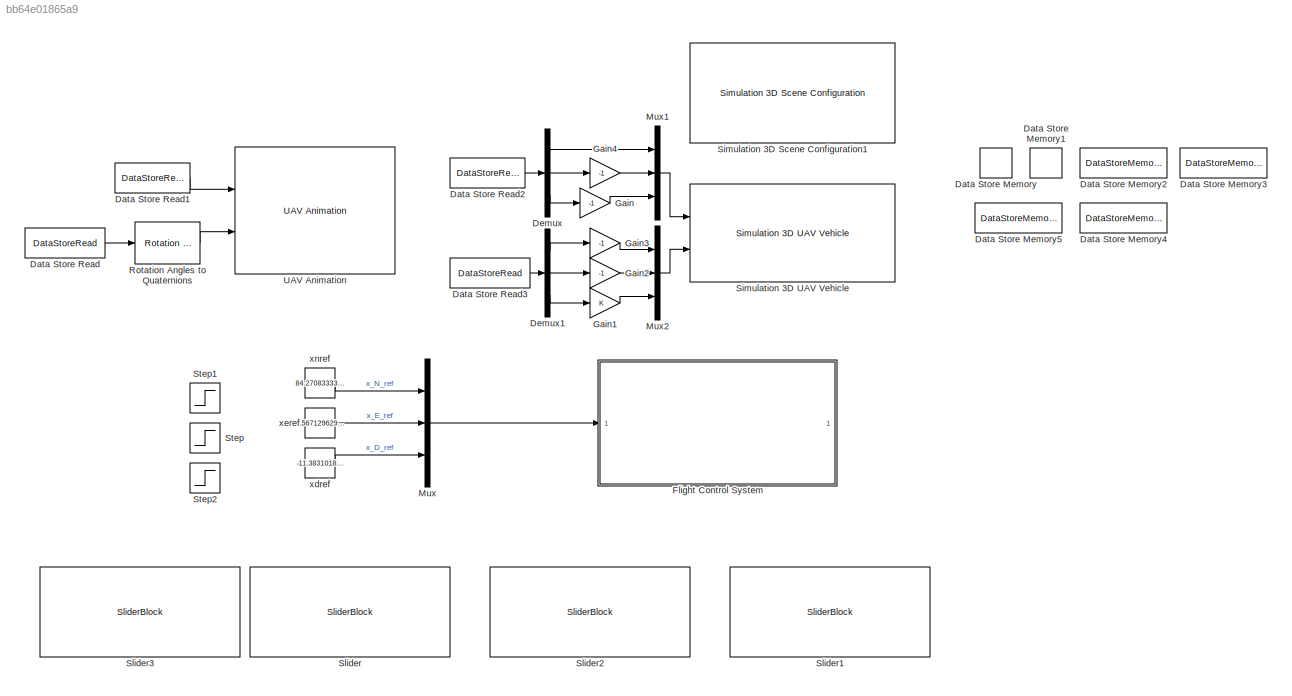
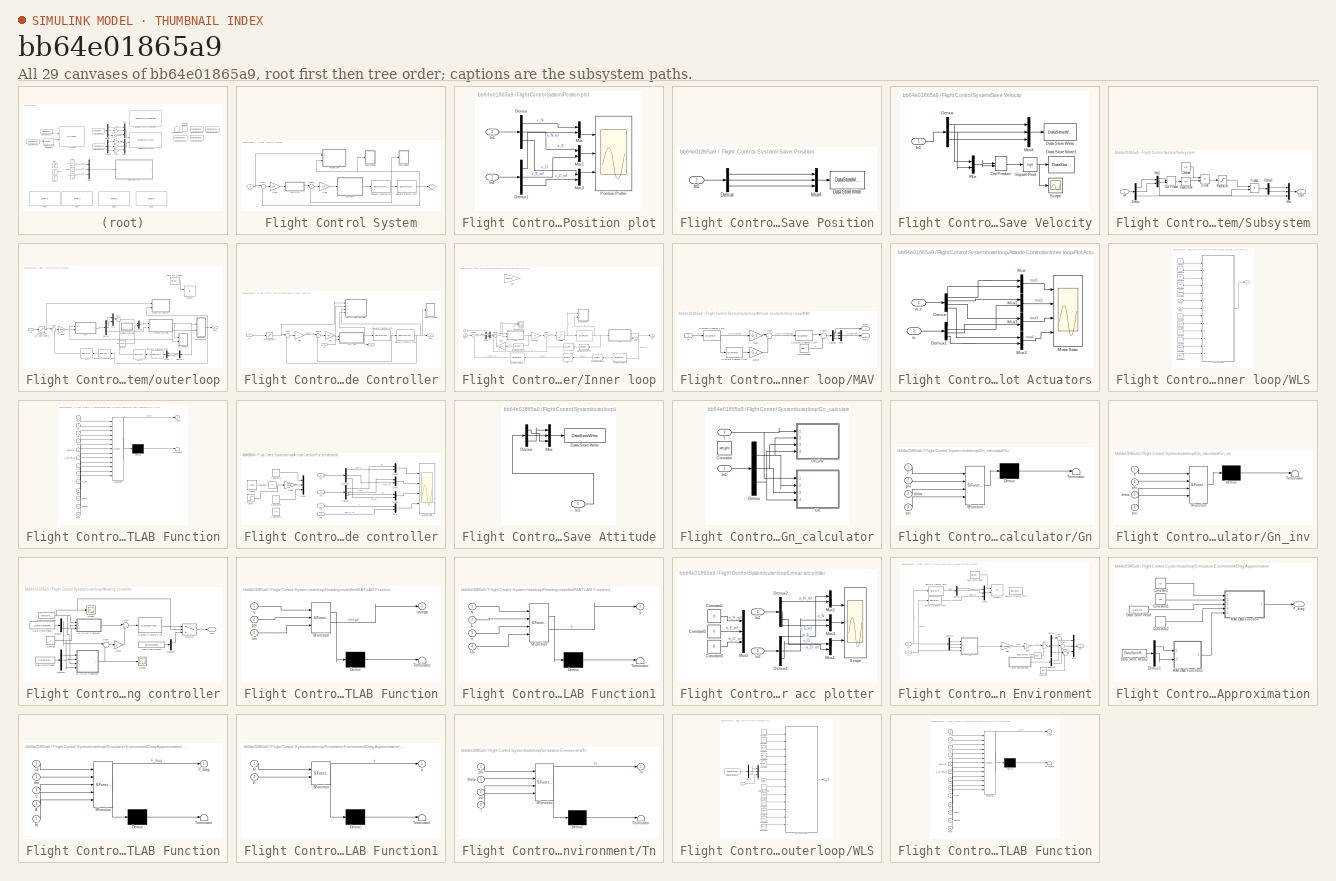
[diagram: thumbnail index - all 29 canvases of the model, root first then tree order]
MODEL slx_bb64e01865a9
KIND model
CONFIG AbsTol = auto
CONFIG EnableMultiTasking = off
CONFIG FixedStep = auto
CONFIG MaxStep = auto
CONFIG MinStep = auto
CONFIG RelTol = 1e-3
CONFIG SampleTimeConstraint = Unconstrained
CONFIG SolverName = VariableStepAuto
CONFIG StartTime = 0.0
CONFIG StopTime = 300
BLOCK [DataStoreMemory] Data Store Memory
  DataStoreName = Gn
  Dimensions = [3,3]
  InitialValue = [0,-9.81*mass,0;9.81*mass,0,0;0,0,1]
  OutDataTypeStr = double
  ReadBeforeWriteMsg = warning
  ShareAcrossModelInstances = on
  ShowAdditionalParam = off
  SignalType = real
  WriteAfterReadMsg = warning
  WriteAfterWriteMsg = warning
BLOCK [DataStoreMemory] Data Store Memory1
  DataStoreName = Gn_inv
  Dimensions = [3,3]
  InitialValue = [0,-1/weight,0;1/weight,0,0;0,0,1]
  OutDataTypeStr = double
  ReadBeforeWriteMsg = warning
  ShareAcrossModelInstances = on
  ShowAdditionalParam = off
  SignalType = real
  WriteAfterReadMsg = warning
  WriteAfterWriteMsg = warning
BLOCK [DataStoreMemory] Data Store Memory2
  DataStoreName = rot_psi_theta_phi
  InitialValue = [0,0,0]
  OutDataTypeStr = double
  ReadBeforeWriteMsg = warning
  ShowAdditionalParam = off
  WriteAfterReadMsg = warning
  WriteAfterWriteMsg = warning
BLOCK [DataStoreMemory] Data Store Memory3
  DataStoreName = pos_x_y_z
  InitialValue = [0,0,0]
  OutDataTypeStr = double
  ReadBeforeWriteMsg = warning
  ShowAdditionalParam = off
  WriteAfterReadMsg = warning
  WriteAfterWriteMsg = warning
BLOCK [DataStoreMemory] Data Store Memory4
  DataStoreName = vel_N_E_D
  InitialValue = [0,0,0]
  OutDataTypeStr = double
  ReadBeforeWriteMsg = warning
  ShowAdditionalParam = off
  WriteAfterReadMsg = warning
  WriteAfterWriteMsg = warning
BLOCK [DataStoreMemory] Data Store Memory5
  DataStoreName = airspeed
  InitialValue = [0]
  OutDataTypeStr = double
  OutMin = [0]
  ReadBeforeWriteMsg = warning
  ShowAdditionalParam = off
  WriteAfterReadMsg = warning
  WriteAfterWriteMsg = warning
BLOCK [DataStoreRead] Data Store Read
  Commented = on
  DataStoreName = rot_psi_theta_phi
  IndexOptions = Index vector (dialog)
  Indices = 1
  OutputSizes = 1
  Ports = [0, 1]
BLOCK [DataStoreRead] Data Store Read1
  Commented = on
  DataStoreName = pos_x_y_z
  IndexOptions = Index vector (dialog)
  Indices = 1
  OutputSizes = 1
  Ports = [0, 1]
BLOCK [DataStoreRead] Data Store Read2
  DataStoreName = pos_x_y_z
  IndexOptions = Index vector (dialog)
  Indices = 1
  OutputSizes = 1
  Ports = [0, 1]
BLOCK [DataStoreRead] Data Store Read3
  DataStoreName = rot_psi_theta_phi
  IndexOptions = Index vector (dialog)
  Indices = 1
  OutputSizes = 1
  Ports = [0, 1]
BLOCK [Demux] Demux
  Outputs = 3
  Ports = [1, 3]
BLOCK [Demux] Demux1
  Outputs = 3
  Ports = [1, 3]
BLOCK [SubSystem] Flight Control System
  Ports = [1, 1]
  RequestExecContextInheritance = off
BLOCK [DiscreteTransferFcn] Flight Control System/Discrete Transfer Fcn
  Denominator = [1 -1]
  InputPortMap = u0
  NameLocation = top
  Numerator = [Ts 0]
  Ports = [1, 1]
BLOCK [DiscreteTransferFcn] Flight Control System/Discrete Transfer Fcn1
  Denominator = [1 -1]
  InputPortMap = u0
  NameLocation = top
  Numerator = [Ts 0]
  Ports = [1, 1]
BLOCK [Gain] Flight Control System/Gain
  Gain = 2.5
BLOCK [Gain] Flight Control System/Gain1
  Gain = 0.4
BLOCK [Inport] Flight Control System/In1
BLOCK [Outport] Flight Control System/Out1
BLOCK [SubSystem] Flight Control System/Position plot
  Ports = [2]
  RequestExecContextInheritance = off
BLOCK [Demux] Flight Control System/Position plot/Demux
  Outputs = 3
  Ports = [1, 3]
BLOCK [Demux] Flight Control System/Position plot/Demux1
  Outputs = 3
  Ports = [1, 3]
BLOCK [Inport] Flight Control System/Position plot/In1
  Port = 2
BLOCK [Inport] Flight Control System/Position plot/In4
BLOCK [Mux] Flight Control System/Position plot/Mux
  DisplayOption = bar
  Inputs = 2
  Ports = [2, 1]
BLOCK [Mux] Flight Control System/Position plot/Mux1
  DisplayOption = bar
  Inputs = 2
  Ports = [2, 1]
BLOCK [Mux] Flight Control System/Position plot/Mux3
  DisplayOption = bar
  Inputs = 2
  Ports = [2, 1]
BLOCK [Scope] Flight Control System/Position plot/Position Plotter
  Floating = off
  NumInputPorts = 3
  Ports = [3]
  ScopeSpecificationString = Simulink.scopes.TimeScopeBlockCfg('CurrentConfiguration', extmgr.ConfigurationSet(extmgr.Configuration('Core','General UI',true),extmgr.Configuration('Core','Source UI',true),extmgr.Configuration('Sources','WiredSimulink',true,'DataLoggingVariableName','ScopeData2'),extmgr.Configuration('Visuals','Time Domain',true,'SerializedDisplays',{struct('MinYLimReal','-20.28592','MaxYLimReal','95.88825','YL...<+2774ch>
BLOCK [SubSystem] Flight Control System/Save Position
  Ports = [1]
  RequestExecContextInheritance = off
BLOCK [DataStoreWrite] Flight Control System/Save Position/Data Store Write
  DataStoreName = pos_x_y_z
  IndexOptions = Index vector (dialog)
  Indices = 1
  OutputSizes = 1
  Ports = [1]
BLOCK [Demux] Flight Control System/Save Position/Demux
  Outputs = 3
  Ports = [1, 3]
BLOCK [Inport] Flight Control System/Save Position/In1
BLOCK [Mux] Flight Control System/Save Position/Mux4
  DisplayOption = bar
  Inputs = 3
  Ports = [3, 1]
BLOCK [SubSystem] Flight Control System/Save Velocity
  Ports = [1]
  RequestExecContextInheritance = off
BLOCK [DataStoreWrite] Flight Control System/Save Velocity/Data Store Write
  DataStoreName = vel_N_E_D
  IndexOptions = Index vector (dialog)
  Indices = 1
  OutputSizes = 1
  Ports = [1]
BLOCK [DataStoreWrite] Flight Control System/Save Velocity/Data Store Write1
  DataStoreName = airspeed
  IndexOptions = Index vector (dialog)
  Indices = 1
  OutputSizes = 1
  Ports = [1]
BLOCK [Demux] Flight Control System/Save Velocity/Demux
  Outputs = 3
  Ports = [1, 3]
BLOCK [DotProduct] Flight Control System/Save Velocity/Dot Product
  OutDataTypeStr = Inherit: Inherit via internal rule
BLOCK [Inport] Flight Control System/Save Velocity/In1
BLOCK [Mux] Flight Control System/Save Velocity/Mux
  DisplayOption = bar
  Inputs = 2
  Ports = [2, 1]
BLOCK [Mux] Flight Control System/Save Velocity/Mux4
  DisplayOption = bar
  Inputs = 3
  Ports = [3, 1]
BLOCK [Scope] Flight Control System/Save Velocity/Scope
  Floating = off
  NumInputPorts = 1
  Ports = [1]
  ScopeSpecificationString = Simulink.scopes.TimeScopeBlockCfg('CurrentConfiguration', extmgr.ConfigurationSet(extmgr.Configuration('Core','General UI',true),extmgr.Configuration('Core','Source UI',true),extmgr.Configuration('Sources','WiredSimulink',true,'DataLoggingVariableName','ScopeData1'),extmgr.Configuration('Visuals','Time Domain',true,'SerializedDisplays',{struct('MinYLimReal','-1.24993','MaxYLimReal','11.24942','YLa...<+1430ch>
BLOCK [Sqrt] Flight Control System/Save Velocity/Square Root
BLOCK [SubSystem] Flight Control System/Subsystem
  Ports = [1, 1]
  RequestExecContextInheritance = off
BLOCK [Constant] Flight Control System/Subsystem/Constant
  Value = v_lim
BLOCK [Demux] Flight Control System/Subsystem/Demux
  Outputs = 3
  Ports = [1, 3]
BLOCK [Demux] Flight Control System/Subsystem/Demux1
  Outputs = 2
  Ports = [1, 2]
BLOCK [Product] Flight Control System/Subsystem/Divide
  Inputs = */
  Ports = [2, 1]
BLOCK [DotProduct] Flight Control System/Subsystem/Dot Product
  OutDataTypeStr = Inherit: Inherit via internal rule
BLOCK [Inport] Flight Control System/Subsystem/In4
BLOCK [Mux] Flight Control System/Subsystem/Mux
  DisplayOption = bar
  Inputs = 3
  Ports = [3, 1]
BLOCK [Mux] Flight Control System/Subsystem/Mux1
  DisplayOption = bar
  Inputs = 2
  Ports = [2, 1]
BLOCK [Outport] Flight Control System/Subsystem/Out4
BLOCK [Product] Flight Control System/Subsystem/Product
  Ports = [2, 1]
BLOCK [Saturate] Flight Control System/Subsystem/Saturation
  LowerLimit = 0
  UpperLimit = 1
BLOCK [Sqrt] Flight Control System/Subsystem/Square Root
BLOCK [Sum] Flight Control System/Sum1
  Inputs = |+-
  Ports = [2, 1]
BLOCK [Sum] Flight Control System/Sum5
  Inputs = |+-
  Ports = [2, 1]
BLOCK [SubSystem] Flight Control System/outerloop
  Ports = [1, 1]
  RequestExecContextInheritance = off
BLOCK [Saturate] Flight Control System/outerloop/Acceleration set-point Limiter
  LowerLimit = [-3,-3,-3]
  UpperLimit = [3,3,3]
BLOCK [SubSystem] Flight Control System/outerloop/Attitude Controller
  Ports = [2, 2]
  RequestExecContextInheritance = off
BLOCK [Saturate] Flight Control System/outerloop/Attitude Controller/Attitude limits
  LowerLimit = [-25,-25,-180]*pi/180
  UpperLimit = [25,25,180]*pi/180
BLOCK [DiscreteTransferFcn] Flight Control System/outerloop/Attitude Controller/Discrete Transfer Fcn
  Denominator = [1 -1]
  InputPortMap = u0
  NameLocation = top
  Numerator = [Ts 0]
  Ports = [1, 1]
BLOCK [DiscreteTransferFcn] Flight Control System/outerloop/Attitude Controller/Discrete Transfer Fcn1
  Denominator = [1 -1]
  InputPortMap = u0
  NameLocation = top
  Numerator = [Ts 0]
  Ports = [1, 1]
BLOCK [Gain] Flight Control System/outerloop/Attitude Controller/Gain
  Gain = 10
BLOCK [Gain] Flight Control System/outerloop/Attitude Controller/Gain1
  Gain = 7
BLOCK [Inport] Flight Control System/outerloop/Attitude Controller/In1
BLOCK [Inport] Flight Control System/outerloop/Attitude Controller/In2
  Port = 2
BLOCK [SubSystem] Flight Control System/outerloop/Attitude Controller/Inner loop
  Ports = [2, 2]
  RequestExecContextInheritance = off
BLOCK [DiscreteTransferFcn] Flight Control System/outerloop/Attitude Controller/Inner loop/ 
  DenCoefDataTypeStr = int16
  Denominator = H_z_den
  InputPortMap = u0
  Numerator = H_z_num
  Ports = [1, 1]
BLOCK [DiscreteTransferFcn] Flight Control System/outerloop/Attitude Controller/Inner loop/  
  DenCoefDataTypeStr = int16
  Denominator = mot_den
  InputPortMap = u0
  Numerator = mot_num
  Ports = [1, 1]
BLOCK [Demux] Flight Control System/outerloop/Attitude Controller/Inner loop/Demux
  Outputs = 3
  Ports = [1, 3]
BLOCK [DiscreteTransferFcn] Flight Control System/outerloop/Attitude Controller/Inner loop/Discrete Transfer Fcn
  Denominator = [1 -1]
  InputPortMap = u0
  NameLocation = top
  Numerator = [Ts 0]
  Ports = [1, 1]
BLOCK [DiscreteTransferFcn] Flight Control System/outerloop/Attitude Controller/Inner loop/Discrete Transfer Fcn1
  Denominator = [1 0]
  InputPortMap = u0
  NameLocation = top
  Ports = [1, 1]
BLOCK [DiscreteTransferFcn] Flight Control System/outerloop/Attitude Controller/Inner loop/Discrete Transfer Fcn2
  Denominator = [1 0]
  InputPortMap = u0
  NameLocation = top
  Ports = [1, 1]
BLOCK [DiscreteTransferFcn] Flight Control System/outerloop/Attitude Controller/Inner loop/Discrete Transfer Fcn3
  Denominator = [Ts 0]
  InputPortMap = u0
  Numerator = [1 -1]
  Ports = [1, 1]
BLOCK [DiscreteTransferFcn] Flight Control System/outerloop/Attitude Controller/Inner loop/Discrete Transfer Fcn4
  Denominator = [1 0]
  InputPortMap = u0
  NameLocation = top
  Ports = [1, 1]
BLOCK [Gain] Flight Control System/outerloop/Attitude Controller/Inner loop/Gain
  Commented = on
  Gain = pseudo_g12
  Multiplication = Matrix(K*u)
BLOCK [Gain] Flight Control System/outerloop/Attitude Controller/Inner loop/Gain1
  Gain = G_2
  Multiplication = Matrix(K*u)
  NameLocation = top
BLOCK [Gain] Flight Control System/outerloop/Attitude Controller/Inner loop/Gain2
  Gain = M
BLOCK [DiscreteTransferFcn] Flight Control System/outerloop/Attitude Controller/Inner loop/H(z)
  DenCoefDataTypeStr = int16
  Denominator = H_z_den
  InputPortMap = u0
  Numerator = H_z_num
  Ports = [1, 1]
BLOCK [Inport] Flight Control System/outerloop/Attitude Controller/Inner loop/In2
  Port = 2
BLOCK [Inport] Flight Control System/outerloop/Attitude Controller/Inner loop/Input
  PortDimensions = 3
BLOCK [SubSystem] Flight Control System/outerloop/Attitude Controller/Inner loop/MAV
  Ports = [1, 2]
  RequestExecContextInheritance = off
BLOCK [Demux] Flight Control System/outerloop/Attitude Controller/Inner loop/MAV/Demux
  Ports = [1, 4]
BLOCK [DiscreteTransferFcn] Flight Control System/outerloop/Attitude Controller/Inner loop/MAV/Discrete Transfer Fcn1
  Denominator = [1 0]
  InputPortMap = u0
  Numerator = [1 -1]
  Ports = [1, 1]
BLOCK [DiscreteTransferFcn] Flight Control System/outerloop/Attitude Controller/Inner loop/MAV/Discrete Transfer Fcn2
  Denominator = [1 0]
  InputPortMap = u0
  Numerator = [1 -1]
  Ports = [1, 1]
BLOCK [DiscreteTransferFcn] Flight Control System/outerloop/Attitude Controller/Inner loop/MAV/Discrete Transfer Fcn3
  Denominator = [1 -1]
  InputPortMap = u0
  Numerator = [1 0]
  Ports = [1, 1]
BLOCK [Reference] Flight Control System/outerloop/Attitude Controller/Inner loop/MAV/Disturbance  REF=simulink/Sources/Band-Limited
White Noise
  Ports = [0, 1]
  SourceBlock = simulink/Sources/Band-Limited\nWhite Noise
  SourceProductBaseCode = SL
  SourceType = Band-Limited White Noise.
BLOCK [Gain] Flight Control System/outerloop/Attitude Controller/Inner loop/MAV/Gain
  Gain = G_1
  Multiplication = Matrix(K*u)
BLOCK [Gain] Flight Control System/outerloop/Attitude Controller/Inner loop/MAV/Gain1
  Gain = G_2
  Multiplication = Matrix(K*u)
BLOCK [Inport] Flight Control System/outerloop/Attitude Controller/Inner loop/MAV/In1
  PortDimensions = 4
BLOCK [Mux] Flight Control System/outerloop/Attitude Controller/Inner loop/MAV/Mux
  DisplayOption = bar
  Inputs = 3
  Ports = [3, 1]
BLOCK [Outport] Flight Control System/outerloop/Attitude Controller/Inner loop/MAV/Out1
  PortDimensions = 3
BLOCK [Outport] Flight Control System/outerloop/Attitude Controller/Inner loop/MAV/Out2
  Port = 2
BLOCK [Sum] Flight Control System/outerloop/Attitude Controller/Inner loop/MAV/Sum
  Inputs = |++
  Ports = [2, 1]
BLOCK [Sum] Flight Control System/outerloop/Attitude Controller/Inner loop/MAV/Sum3
  Inputs = |++
  Ports = [2, 1]
BLOCK [Saturate] Flight Control System/outerloop/Attitude Controller/Inner loop/Motor limits
  LowerLimit = 52
  UpperLimit = 733
BLOCK [Mux] Flight Control System/outerloop/Attitude Controller/Inner loop/Mux
  DisplayOption = bar
  Ports = [4, 1]
BLOCK [Outport] Flight Control System/outerloop/Attitude Controller/Inner loop/Out1
  PortDimensions = 3
BLOCK [Outport] Flight Control System/outerloop/Attitude Controller/Inner loop/Out2
  Port = 2
BLOCK [SubSystem] Flight Control System/outerloop/Attitude Controller/Inner loop/Plot Actuators
  Ports = [2]
  RequestExecContextInheritance = off
BLOCK [Demux] Flight Control System/outerloop/Attitude Controller/Inner loop/Plot Actuators/Demux
  Ports = [1, 4]
BLOCK [Demux] Flight Control System/outerloop/Attitude Controller/Inner loop/Plot Actuators/Demux1
  Ports = [1, 4]
BLOCK [Scope] Flight Control System/outerloop/Attitude Controller/Inner loop/Plot Actuators/Motor State
  Floating = off
  NumInputPorts = 4
  Ports = [4]
  ScopeSpecificationString = Simulink.scopes.TimeScopeBlockCfg('CurrentConfiguration', extmgr.ConfigurationSet(extmgr.Configuration('Core','General UI',true),extmgr.Configuration('Core','Source UI',true),extmgr.Configuration('Sources','WiredSimulink',true,'DataLoggingVariableName','ScopeData3'),extmgr.Configuration('Visuals','Time Domain',true,'SerializedDisplays',{struct('MinYLimReal','-91.625','MaxYLimReal','824.625','YLabe...<+3563ch>
BLOCK [Mux] Flight Control System/outerloop/Attitude Controller/Inner loop/Plot Actuators/Mux
  DisplayOption = bar
  Inputs = 2
  Ports = [2, 1]
BLOCK [Mux] Flight Control System/outerloop/Attitude Controller/Inner loop/Plot Actuators/Mux1
  DisplayOption = bar
  Inputs = 2
  Ports = [2, 1]
BLOCK [Mux] Flight Control System/outerloop/Attitude Controller/Inner loop/Plot Actuators/Mux2
  DisplayOption = bar
  Inputs = 2
  Ports = [2, 1]
BLOCK [Mux] Flight Control System/outerloop/Attitude Controller/Inner loop/Plot Actuators/Mux3
  DisplayOption = bar
  Inputs = 2
  Ports = [2, 1]
BLOCK [Inport] Flight Control System/outerloop/Attitude Controller/Inner loop/Plot Actuators/w
  Port = 2
BLOCK [Inport] Flight Control System/outerloop/Attitude Controller/Inner loop/Plot Actuators/w_c
BLOCK [Scope] Flight Control System/outerloop/Attitude Controller/Inner loop/Scope
  Floating = off
  NumInputPorts = 2
  Ports = [2]
  ScopeSpecificationString = Simulink.scopes.TimeScopeBlockCfg('CurrentConfiguration', extmgr.ConfigurationSet(extmgr.Configuration('Core','General UI',true),extmgr.Configuration('Core','Source UI',true),extmgr.Configuration('Sources','WiredSimulink',true,'DataLoggingVariableName','ScopeData1'),extmgr.Configuration('Visuals','Time Domain',true,'SerializedDisplays',{struct('MinYLimReal','-29.49243','MaxYLimReal','27.17666','YL...<+2110ch>
BLOCK [Sum] Flight Control System/outerloop/Attitude Controller/Inner loop/Sum1
  Inputs = |++
  Ports = [2, 1]
BLOCK [Sum] Flight Control System/outerloop/Attitude Controller/Inner loop/Sum3
  Inputs = |++
  Ports = [2, 1]
BLOCK [Sum] Flight Control System/outerloop/Attitude Controller/Inner loop/Sum5
  Inputs = |+-
  Ports = [2, 1]
BLOCK [SubSystem] Flight Control System/outerloop/Attitude Controller/Inner loop/WLS
  Ports = [2, 1]
  RequestExecContextInheritance = off
BLOCK [Constant] Flight Control System/outerloop/Attitude Controller/Inner loop/WLS/Constant
  Value = 4
BLOCK [Constant] Flight Control System/outerloop/Attitude Controller/Inner loop/WLS/Constant1
  Value = 4
BLOCK [Constant] Flight Control System/outerloop/Attitude Controller/Inner loop/WLS/Constant10
  Value = imax
BLOCK [Constant] Flight Control System/outerloop/Attitude Controller/Inner loop/WLS/Constant2
  Value = Wv
BLOCK [Constant] Flight Control System/outerloop/Attitude Controller/Inner loop/WLS/Constant3
  Value = Wu
BLOCK [Constant] Flight Control System/outerloop/Attitude Controller/Inner loop/WLS/Constant4
  Value = gamma
BLOCK [Constant] Flight Control System/outerloop/Attitude Controller/Inner loop/WLS/Constant5
  Value = B
BLOCK [Constant] Flight Control System/outerloop/Attitude Controller/Inner loop/WLS/Constant6
  Value = W_init
BLOCK [Constant] Flight Control System/outerloop/Attitude Controller/Inner loop/WLS/Constant7
  Value = up
BLOCK [Constant] Flight Control System/outerloop/Attitude Controller/Inner loop/WLS/Constant8
  Value = 0
BLOCK [Constant] Flight Control System/outerloop/Attitude Controller/Inner loop/WLS/Constant9
  Value = uamax
BLOCK [Inport] Flight Control System/outerloop/Attitude Controller/Inner loop/WLS/Input
  Port = 2
BLOCK [Inport] Flight Control System/outerloop/Attitude Controller/Inner loop/WLS/Input1
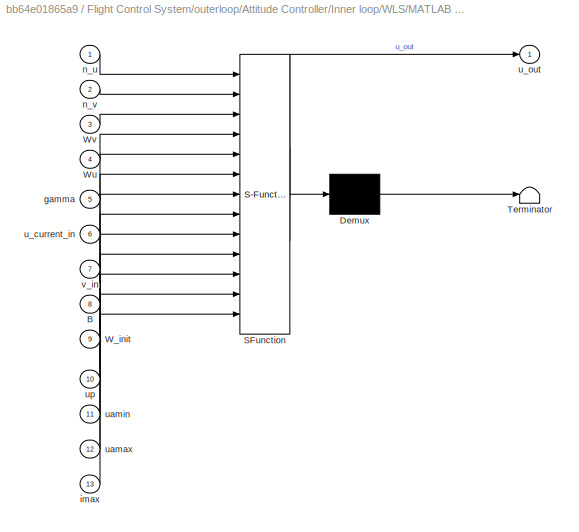
BLOCK [SubSystem] Flight Control System/outerloop/Attitude Controller/Inner loop/WLS/MATLAB Function
  ErrorFcn = Stateflow.Translate.translate
  PermitHierarchicalResolution = ExplicitOnly
  Ports = [13, 1]
  RequestExecContextInheritance = off
  SFBlockType = MATLAB Function
  TreatAsAtomicUnit = on
BLOCK [Demux] Flight Control System/outerloop/Attitude Controller/Inner loop/WLS/MATLAB Function/ Demux 
  Outputs = 1
  Ports = [1, 1]
BLOCK [S-Function] Flight Control System/outerloop/Attitude Controller/Inner loop/WLS/MATLAB Function/ SFunction 
  EnableBusSupport = on
  FunctionName = sf_sfun
  PortCounts = [13 2]
  Ports = [13, 2]
  SFcnIsStateOwnerBlock = off
  SFunctionDeploymentMode = off
  Tag = Stateflow S-Function 3
BLOCK [Terminator] Flight Control System/outerloop/Attitude Controller/Inner loop/WLS/MATLAB Function/ Terminator 
BLOCK [Inport] Flight Control System/outerloop/Attitude Controller/Inner loop/WLS/MATLAB Function/B
  Port = 8
BLOCK [Inport] Flight Control System/outerloop/Attitude Controller/Inner loop/WLS/MATLAB Function/W_init
  Port = 9
BLOCK [Inport] Flight Control System/outerloop/Attitude Controller/Inner loop/WLS/MATLAB Function/Wu
  Port = 4
BLOCK [Inport] Flight Control System/outerloop/Attitude Controller/Inner loop/WLS/MATLAB Function/Wv
  Port = 3
BLOCK [Inport] Flight Control System/outerloop/Attitude Controller/Inner loop/WLS/MATLAB Function/gamma
  Port = 5
BLOCK [Inport] Flight Control System/outerloop/Attitude Controller/Inner loop/WLS/MATLAB Function/imax
  Port = 13
BLOCK [Inport] Flight Control System/outerloop/Attitude Controller/Inner loop/WLS/MATLAB Function/n_u
BLOCK [Inport] Flight Control System/outerloop/Attitude Controller/Inner loop/WLS/MATLAB Function/n_v
  Port = 2
BLOCK [Inport] Flight Control System/outerloop/Attitude Controller/Inner loop/WLS/MATLAB Function/u_current_in
  Port = 6
BLOCK [Outport] Flight Control System/outerloop/Attitude Controller/Inner loop/WLS/MATLAB Function/u_out
BLOCK [Inport] Flight Control System/outerloop/Attitude Controller/Inner loop/WLS/MATLAB Function/uamax
  Port = 12
BLOCK [Inport] Flight Control System/outerloop/Attitude Controller/Inner loop/WLS/MATLAB Function/uamin
  Port = 11
BLOCK [Inport] Flight Control System/outerloop/Attitude Controller/Inner loop/WLS/MATLAB Function/up
  Port = 10
BLOCK [Inport] Flight Control System/outerloop/Attitude Controller/Inner loop/WLS/MATLAB Function/v_in
  Port = 7
BLOCK [Outport] Flight Control System/outerloop/Attitude Controller/Inner loop/WLS/u
BLOCK [Outport] Flight Control System/outerloop/Attitude Controller/Out1
BLOCK [SubSystem] Flight Control System/outerloop/Attitude Controller/Plot attitude controller
  Ports = [4]
  RequestExecContextInheritance = off
BLOCK [Scope] Flight Control System/outerloop/Attitude Controller/Plot attitude controller/Attitude plot
  Floating = off
  NumInputPorts = 4
  Ports = [4]
  ScopeSpecificationString = Simulink.scopes.TimeScopeBlockCfg('CurrentConfiguration', extmgr.ConfigurationSet(extmgr.Configuration('Core','General UI',true),extmgr.Configuration('Core','Source UI',true),extmgr.Configuration('Sources','WiredSimulink',true,'DataLoggingVariableName','ScopeData1'),extmgr.Configuration('Visuals','Time Domain',true,'SerializedDisplays',{struct('MinYLimReal','-1.48597','MaxYLimReal','7.37595','YLab...<+3471ch>
BLOCK [Reference] Flight Control System/outerloop/Attitude Controller/Plot attitude controller/Chirp2  REF=dspsrcs4/Chirp
  Ports = [0, 1]
  SourceBlock = dspsrcs4/Chirp
  SourceProductBaseCode = DS
  SourceType = Chirp
BLOCK [Constant] Flight Control System/outerloop/Attitude Controller/Plot attitude controller/Constant1
  Value = 0
BLOCK [Constant] Flight Control System/outerloop/Attitude Controller/Plot attitude controller/Constant2
  Value = 0
BLOCK [Constant] Flight Control System/outerloop/Attitude Controller/Plot attitude controller/Constant3
  Value = 0
BLOCK [Constant] Flight Control System/outerloop/Attitude Controller/Plot attitude controller/Constant4
  Value = 30
BLOCK [Demux] Flight Control System/outerloop/Attitude Controller/Plot attitude controller/Demux
  Outputs = 3
  Ports = [1, 3]
BLOCK [Demux] Flight Control System/outerloop/Attitude Controller/Plot attitude controller/Demux1
  Outputs = 3
  Ports = [1, 3]
BLOCK [Gain] Flight Control System/outerloop/Attitude Controller/Plot attitude controller/Gain5
  Gain = 0.3
BLOCK [Inport] Flight Control System/outerloop/Attitude Controller/Plot attitude controller/In1
BLOCK [Inport] Flight Control System/outerloop/Attitude Controller/Plot attitude controller/In2
  Port = 2
BLOCK [Inport] Flight Control System/outerloop/Attitude Controller/Plot attitude controller/In3
  Port = 3
BLOCK [Inport] Flight Control System/outerloop/Attitude Controller/Plot attitude controller/In4
  Port = 4
BLOCK [Mux] Flight Control System/outerloop/Attitude Controller/Plot attitude controller/Mux
  DisplayOption = bar
  Inputs = 2
  Ports = [2, 1]
BLOCK [Mux] Flight Control System/outerloop/Attitude Controller/Plot attitude controller/Mux2
  DisplayOption = bar
  Inputs = 3
  Ports = [3, 1]
BLOCK [Mux] Flight Control System/outerloop/Attitude Controller/Plot attitude controller/Mux3
  DisplayOption = bar
  Inputs = 2
  Ports = [2, 1]
BLOCK [Mux] Flight Control System/outerloop/Attitude Controller/Plot attitude controller/Mux4
  DisplayOption = bar
  Inputs = 2
  Ports = [2, 1]
BLOCK [Mux] Flight Control System/outerloop/Attitude Controller/Plot attitude controller/Mux5
  DisplayOption = bar
  Inputs = 2
  Ports = [2, 1]
BLOCK [Step] Flight Control System/outerloop/Attitude Controller/Plot attitude controller/Step
  SampleTime = 0
BLOCK [SubSystem] Flight Control System/outerloop/Attitude Controller/Save Attitude
  Ports = [1]
  RequestExecContextInheritance = off
BLOCK [DataStoreWrite] Flight Control System/outerloop/Attitude Controller/Save Attitude/Data Store Write
  DataStoreName = rot_psi_theta_phi
  IndexOptions = Index vector (dialog)
  Indices = 1
  OutputSizes = 1
  Ports = [1]
BLOCK [Demux] Flight Control System/outerloop/Attitude Controller/Save Attitude/Demux
  Outputs = 3
  Ports = [1, 3]
BLOCK [Inport] Flight Control System/outerloop/Attitude Controller/Save Attitude/In1
BLOCK [Mux] Flight Control System/outerloop/Attitude Controller/Save Attitude/Mux
  DisplayOption = bar
  Inputs = 3
  Ports = [3, 1]
BLOCK [Sum] Flight Control System/outerloop/Attitude Controller/Sum1
  Inputs = |+-
  Ports = [2, 1]
BLOCK [Sum] Flight Control System/outerloop/Attitude Controller/Sum5
  Inputs = |+-
  Ports = [2, 1]
BLOCK [Outport] Flight Control System/outerloop/Attitude Controller/T
  Port = 2
BLOCK [DataStoreRead] Flight Control System/outerloop/Data Store Read1
  Commented = on
  DataStoreName = Gn_inv
  IndexOptions = Index vector (dialog)
  Indices = 1
  OutputSizes = 1
  Ports = [0, 1]
  SampleTime = Ts
BLOCK [Demux] Flight Control System/outerloop/Demux
  Outputs = 3
  Ports = [1, 3]
BLOCK [Demux] Flight Control System/outerloop/Demux2
  Outputs = 3
  Ports = [1, 3]
BLOCK [DiscreteTransferFcn] Flight Control System/outerloop/Discrete Transfer Fcn1
  Denominator = [1 0]
  InputPortMap = u0
  NameLocation = top
  Ports = [1, 1]
BLOCK [DiscreteTransferFcn] Flight Control System/outerloop/Discrete Transfer Fcn2
  Denominator = [1 0]
  InputPortMap = u0
  NameLocation = top
  Ports = [1, 1]
BLOCK [Gain] Flight Control System/outerloop/Gain
  Gain = mass
BLOCK [SubSystem] Flight Control System/outerloop/Gn_calculator
  Ports = [2]
  RequestExecContextInheritance = off
BLOCK [Constant] Flight Control System/outerloop/Gn_calculator/Constant
  Value = weight
BLOCK [Demux] Flight Control System/outerloop/Gn_calculator/Demux
  Outputs = 3
  Ports = [1, 3]
BLOCK [SubSystem] Flight Control System/outerloop/Gn_calculator/Gn
  ErrorFcn = Stateflow.Translate.translate
  PermitHierarchicalResolution = ExplicitOnly
  Ports = [4]
  RequestExecContextInheritance = off
  SFBlockType = MATLAB Function
  TreatAsAtomicUnit = on
BLOCK [Demux] Flight Control System/outerloop/Gn_calculator/Gn/ Demux 
  Outputs = 1
  Ports = [1, 1]
BLOCK [S-Function] Flight Control System/outerloop/Gn_calculator/Gn/ SFunction 
  EnableBusSupport = on
  FunctionName = sf_sfun
  PortCounts = [4 1]
  Ports = [4, 1]
  SFcnIsStateOwnerBlock = off
  SFunctionDeploymentMode = off
  Tag = Stateflow S-Function 2
BLOCK [Terminator] Flight Control System/outerloop/Gn_calculator/Gn/ Terminator 
BLOCK [Inport] Flight Control System/outerloop/Gn_calculator/Gn/T
BLOCK [Inport] Flight Control System/outerloop/Gn_calculator/Gn/phi
  Port = 2
BLOCK [Inport] Flight Control System/outerloop/Gn_calculator/Gn/psi
  Port = 4
BLOCK [Inport] Flight Control System/outerloop/Gn_calculator/Gn/theta
  Port = 3
BLOCK [SubSystem] Flight Control System/outerloop/Gn_calculator/Gn_inv
  ErrorFcn = Stateflow.Translate.translate
  PermitHierarchicalResolution = ExplicitOnly
  Ports = [4]
  RequestExecContextInheritance = off
  SFBlockType = MATLAB Function
  TreatAsAtomicUnit = on
BLOCK [Demux] Flight Control System/outerloop/Gn_calculator/Gn_inv/ Demux 
  Outputs = 1
  Ports = [1, 1]
BLOCK [S-Function] Flight Control System/outerloop/Gn_calculator/Gn_inv/ SFunction 
  EnableBusSupport = on
  FunctionName = sf_sfun
  PortCounts = [4 1]
  Ports = [4, 1]
  SFcnIsStateOwnerBlock = off
  SFunctionDeploymentMode = off
  Tag = Stateflow S-Function 1
BLOCK [Terminator] Flight Control System/outerloop/Gn_calculator/Gn_inv/ Terminator 
BLOCK [Inport] Flight Control System/outerloop/Gn_calculator/Gn_inv/T
BLOCK [Inport] Flight Control System/outerloop/Gn_calculator/Gn_inv/phi
  Port = 2
BLOCK [Inport] Flight Control System/outerloop/Gn_calculator/Gn_inv/psi
  Port = 4
BLOCK [Inport] Flight Control System/outerloop/Gn_calculator/Gn_inv/theta
  Port = 3
BLOCK [Inport] Flight Control System/outerloop/Gn_calculator/In1
BLOCK [Inport] Flight Control System/outerloop/Gn_calculator/T
  Port = 2
BLOCK [DiscreteTransferFcn] Flight Control System/outerloop/H(z)
  DenCoefDataTypeStr = int16
  Denominator = H_z_den
  InputPortMap = u0
  Numerator = H_z_num
  Ports = [1, 1]
BLOCK [DiscreteTransferFcn] Flight Control System/outerloop/H(z)1
  DenCoefDataTypeStr = int16
  Denominator = H_z_den
  InputPortMap = u0
  Numerator = H_z_num
  Ports = [1, 1]
BLOCK [SubSystem] Flight Control System/outerloop/Heading controller
  Ports = [0, 1]
  RequestExecContextInheritance = off
BLOCK [Constant] Flight Control System/outerloop/Heading controller/Constant
  Value = 3
BLOCK [DataStoreRead] Flight Control System/outerloop/Heading controller/Data Store Read
  DataStoreName = airspeed
  IndexOptions = Index vector (dialog)
  Indices = 1
  OutputSizes = 1
  Ports = [0, 1]
BLOCK [DataStoreRead] Flight Control System/outerloop/Heading controller/Data Store Read1
  DataStoreName = rot_psi_theta_phi
  IndexOptions = Index vector (dialog)
  Indices = 1
  OutputSizes = 1
  Ports = [0, 1]
BLOCK [DataStoreRead] Flight Control System/outerloop/Heading controller/Data Store Read2
  DataStoreName = vel_N_E_D
  IndexOptions = Index vector (dialog)
  Indices = 1
  OutputSizes = 1
  Ports = [0, 1]
BLOCK [DataStoreRead] Flight Control System/outerloop/Heading controller/Data Store Read3
  DataStoreName = rot_psi_theta_phi
  IndexOptions = Index vector (dialog)
  Indices = 1
  OutputSizes = 1
  Ports = [0, 1]
BLOCK [Demux] Flight Control System/outerloop/Heading controller/Demux
  Outputs = 3
  Ports = [1, 3]
BLOCK [Demux] Flight Control System/outerloop/Heading controller/Demux1
  Outputs = 3
  Ports = [1, 3]
BLOCK [Demux] Flight Control System/outerloop/Heading controller/Demux2
  Outputs = 3
  Ports = [1, 3]
BLOCK [DiscreteTransferFcn] Flight Control System/outerloop/Heading controller/Discrete Transfer Fcn
  Denominator = [1 -1]
  InputPortMap = u0
  NameLocation = top
  Numerator = [Ts 0]
  Ports = [1, 1]
BLOCK [Gain] Flight Control System/outerloop/Heading controller/Gain
BLOCK [SubSystem] Flight Control System/outerloop/Heading controller/MATLAB Function
  ErrorFcn = Stateflow.Translate.translate
  PermitHierarchicalResolution = ExplicitOnly
  Ports = [3, 1]
  RequestExecContextInheritance = off
  SFBlockType = MATLAB Function
  TreatAsAtomicUnit = on
BLOCK [Demux] Flight Control System/outerloop/Heading controller/MATLAB Function/ Demux 
  Outputs = 1
  Ports = [1, 1]
BLOCK [S-Function] Flight Control System/outerloop/Heading controller/MATLAB Function/ SFunction 
  EnableBusSupport = on
  FunctionName = sf_sfun
  PortCounts = [3 2]
  Ports = [3, 2]
  SFcnIsStateOwnerBlock = off
  SFunctionDeploymentMode = off
  Tag = Stateflow S-Function 4
BLOCK [Terminator] Flight Control System/outerloop/Heading controller/MATLAB Function/ Terminator 
BLOCK [Inport] Flight Control System/outerloop/Heading controller/MATLAB Function/lim
  Port = 3
BLOCK [Outport] Flight Control System/outerloop/Heading controller/MATLAB Function/omega
BLOCK [Inport] Flight Control System/outerloop/Heading controller/MATLAB Function/phi
  Port = 2
BLOCK [Inport] Flight Control System/outerloop/Heading controller/MATLAB Function/u
BLOCK [SubSystem] Flight Control System/outerloop/Heading controller/MATLAB Function1
  ErrorFcn = Stateflow.Translate.translate
  PermitHierarchicalResolution = ExplicitOnly
  Ports = [4, 1]
  RequestExecContextInheritance = off
  SFBlockType = MATLAB Function
  TreatAsAtomicUnit = on
BLOCK [Demux] Flight Control System/outerloop/Heading controller/MATLAB Function1/ Demux 
  Outputs = 1
  Ports = [1, 1]
BLOCK [S-Function] Flight Control System/outerloop/Heading controller/MATLAB Function1/ SFunction 
  EnableBusSupport = on
  FunctionName = sf_sfun
  PortCounts = [4 2]
  Ports = [4, 2]
  SFcnIsStateOwnerBlock = off
  SFunctionDeploymentMode = off
  Tag = Stateflow S-Function 5
BLOCK [Terminator] Flight Control System/outerloop/Heading controller/MATLAB Function1/ Terminator 
BLOCK [Inport] Flight Control System/outerloop/Heading controller/MATLAB Function1/E
  Port = 2
BLOCK [Inport] Flight Control System/outerloop/Heading controller/MATLAB Function1/N
BLOCK [Inport] Flight Control System/outerloop/Heading controller/MATLAB Function1/lim
  Port = 4
BLOCK [Inport] Flight Control System/outerloop/Heading controller/MATLAB Function1/u
  Port = 3
BLOCK [Outport] Flight Control System/outerloop/Heading controller/MATLAB Function1/y
BLOCK [Outport] Flight Control System/outerloop/Heading controller/Out1
BLOCK [Scope] Flight Control System/outerloop/Heading controller/Scope
  Floating = off
  NumInputPorts = 1
  Ports = [1]
  ScopeSpecificationString = Simulink.scopes.TimeScopeBlockCfg('CurrentConfiguration', extmgr.ConfigurationSet(extmgr.Configuration('Core','General UI',true),extmgr.Configuration('Core','Source UI',true),extmgr.Configuration('Sources','WiredSimulink',true,'DataLoggingVariableName','ScopeData1'),extmgr.Configuration('Visuals','Time Domain',true,'SerializedDisplays',{struct('MinYLimReal','-0.6243','MaxYLimReal','5.61871','YLabe...<+1402ch>
BLOCK [Scope] Flight Control System/outerloop/Heading controller/Scope1
  Floating = off
  NumInputPorts = 1
  Ports = [1]
  ScopeSpecificationString = Simulink.scopes.TimeScopeBlockCfg('CurrentConfiguration', extmgr.ConfigurationSet(extmgr.Configuration('Core','General UI',true),extmgr.Configuration('Core','Source UI',true),extmgr.Configuration('Sources','WiredSimulink',true,'DataLoggingVariableName','ScopeData2'),extmgr.Configuration('Visuals','Time Domain',true,'SerializedDisplays',{struct('MinYLimReal','-1.67108','MaxYLimReal','1.94008','YLab...<+1405ch>
BLOCK [Sum] Flight Control System/outerloop/Heading controller/Sum
  Inputs = |++
  Ports = [2, 1]
BLOCK [Sum] Flight Control System/outerloop/Heading controller/Sum1
  Inputs = |-+
  Ports = [2, 1]
BLOCK [Switch] Flight Control System/outerloop/Heading controller/Switch
  Criteria = u2 > Threshold
  InputSameDT = off
  SaturateOnIntegerOverflow = off
  Threshold = 3
BLOCK [Inport] Flight Control System/outerloop/In1
BLOCK [SubSystem] Flight Control System/outerloop/Linear acc plotter
  Ports = [2]
  RequestExecContextInheritance = off
BLOCK [Constant] Flight Control System/outerloop/Linear acc plotter/Constant1
  SampleTime = Ts
  Value = 0
BLOCK [Constant] Flight Control System/outerloop/Linear acc plotter/Constant2
  SampleTime = Ts
  Value = 0
BLOCK [Constant] Flight Control System/outerloop/Linear acc plotter/Constant3
  SampleTime = Ts
  Value = 0
BLOCK [Demux] Flight Control System/outerloop/Linear acc plotter/Demux1
  Outputs = 3
  Ports = [1, 3]
BLOCK [Demux] Flight Control System/outerloop/Linear acc plotter/Demux2
  Outputs = 3
  Ports = [1, 3]
BLOCK [Inport] Flight Control System/outerloop/Linear acc plotter/In1
BLOCK [Inport] Flight Control System/outerloop/Linear acc plotter/In2
  Port = 2
BLOCK [Mux] Flight Control System/outerloop/Linear acc plotter/Mux1
  DisplayOption = bar
  Inputs = 2
  Ports = [2, 1]
BLOCK [Mux] Flight Control System/outerloop/Linear acc plotter/Mux2
  DisplayOption = bar
  Inputs = 3
  Ports = [3, 1]
BLOCK [Mux] Flight Control System/outerloop/Linear acc plotter/Mux3
  DisplayOption = bar
  Inputs = 2
  Ports = [2, 1]
BLOCK [Mux] Flight Control System/outerloop/Linear acc plotter/Mux4
  DisplayOption = bar
  Inputs = 2
  Ports = [2, 1]
BLOCK [Scope] Flight Control System/outerloop/Linear acc plotter/Scope
  Floating = off
  NumInputPorts = 3
  Ports = [3]
  ScopeSpecificationString = Simulink.scopes.TimeScopeBlockCfg('CurrentConfiguration', extmgr.ConfigurationSet(extmgr.Configuration('Core','General UI',true),extmgr.Configuration('Core','Source UI',true),extmgr.Configuration('Sources','WiredSimulink',true,'DataLoggingVariableName','ScopeData1','SampleTime','Ts'),extmgr.Configuration('Visuals','Time Domain',true,'SerializedDisplays',{struct('MinYLimReal','-26.843','MaxYLimReal...<+2830ch>
BLOCK [Mux] Flight Control System/outerloop/Mux
  DisplayOption = bar
  Inputs = 2
  Ports = [2, 1]
BLOCK [Mux] Flight Control System/outerloop/Mux7
  DisplayOption = bar
  Inputs = 2
  Ports = [2, 1]
BLOCK [Mux] Flight Control System/outerloop/Mux8
  DisplayOption = bar
  Inputs = 2
  Ports = [2, 1]
BLOCK [Outport] Flight Control System/outerloop/Out1
BLOCK [Product] Flight Control System/outerloop/Product
  Commented = on
  Multiplication = Matrix(*)
  Ports = [2, 1]
BLOCK [SubSystem] Flight Control System/outerloop/Simulation Environment
  Ports = [2, 1]
  RequestExecContextInheritance = off
BLOCK [Reference] Flight Control System/outerloop/Simulation Environment/Band-Limited White Noise  REF=simulink/Sources/Band-Limited
White Noise
  Ports = [0, 1]
  SourceBlock = simulink/Sources/Band-Limited\nWhite Noise
  SourceProductBaseCode = SL
  SourceType = Band-Limited White Noise.
BLOCK [Constant] Flight Control System/outerloop/Simulation Environment/Constant
  Value = 9.81
BLOCK [DataStoreRead] Flight Control System/outerloop/Simulation Environment/Data Store Read
  Commented = on
  DataStoreName = Gn
  IndexOptions = Index vector (dialog)
  Indices = 1
  OutputSizes = 1
  Ports = [0, 1]
BLOCK [Demux] Flight Control System/outerloop/Simulation Environment/Demux
  Outputs = 3
  Ports = [1, 3]
BLOCK [Demux] Flight Control System/outerloop/Simulation Environment/Demux1
  Commented = on
  Outputs = 3
  Ports = [1, 3]
BLOCK [Demux] Flight Control System/outerloop/Simulation Environment/Demux2
  Outputs = 3
  Ports = [1, 3]
BLOCK [Demux] Flight Control System/outerloop/Simulation Environment/Demux3
  Outputs = 2
  Ports = [1, 2]
BLOCK [DiscreteTransferFcn] Flight Control System/outerloop/Simulation Environment/Discrete Transfer Fcn2
  Commented = on
  Denominator = [Ts 0]
  InputPortMap = u0
  Numerator = [1 -1]
  Ports = [1, 1]
BLOCK [DiscreteTransferFcn] Flight Control System/outerloop/Simulation Environment/Discrete Transfer Fcn4
  Commented = on
  Denominator = [Ts 0]
  InputPortMap = u0
  Numerator = [1 -1]
  Ports = [1, 1]
BLOCK [DiscreteTransferFcn] Flight Control System/outerloop/Simulation Environment/Discrete Transfer Fcn5
  Commented = on
  Denominator = [1 -1]
  InputPortMap = u0
  Numerator = [Ts 0]
  Ports = [1, 1]
BLOCK [SubSystem] Flight Control System/outerloop/Simulation Environment/Drag Approximation
  Ports = [0, 1]
  RequestExecContextInheritance = off
BLOCK [Constant] Flight Control System/outerloop/Simulation Environment/Drag Approximation/Constant
  Value = cd
BLOCK [Constant] Flight Control System/outerloop/Simulation Environment/Drag Approximation/Constant1
  Value = rho
BLOCK [Constant] Flight Control System/outerloop/Simulation Environment/Drag Approximation/Constant2
  Value = A
BLOCK [DataStoreRead] Flight Control System/outerloop/Simulation Environment/Drag Approximation/Data Store Read
  DataStoreName = airspeed
  IndexOptions = Index vector (dialog)
  Indices = 1
  OutputSizes = 1
  Ports = [0, 1]
BLOCK [DataStoreRead] Flight Control System/outerloop/Simulation Environment/Drag Approximation/Data Store Read2
  DataStoreName = vel_N_E_D
  IndexOptions = Index vector (dialog)
  Indices = 1
  OutputSizes = 1
  Ports = [0, 1]
BLOCK [Demux] Flight Control System/outerloop/Simulation Environment/Drag Approximation/Demux1
  Outputs = 3
  Ports = [1, 3]
BLOCK [Outport] Flight Control System/outerloop/Simulation Environment/Drag Approximation/F_drag
BLOCK [SubSystem] Flight Control System/outerloop/Simulation Environment/Drag Approximation/MATLAB Function
  ErrorFcn = Stateflow.Translate.translate
  PermitHierarchicalResolution = ExplicitOnly
  Ports = [5, 1]
  RequestExecContextInheritance = off
  SFBlockType = MATLAB Function
  TreatAsAtomicUnit = on
BLOCK [Demux] Flight Control System/outerloop/Simulation Environment/Drag Approximation/MATLAB Function/ Demux 
  Outputs = 1
  Ports = [1, 1]
BLOCK [S-Function] Flight Control System/outerloop/Simulation Environment/Drag Approximation/MATLAB Function/ SFunction 
  EnableBusSupport = on
  FunctionName = sf_sfun
  PortCounts = [5 2]
  Ports = [5, 2]
  SFcnIsStateOwnerBlock = off
  SFunctionDeploymentMode = off
  Tag = Stateflow S-Function 6
BLOCK [Terminator] Flight Control System/outerloop/Simulation Environment/Drag Approximation/MATLAB Function/ Terminator 
BLOCK [Inport] Flight Control System/outerloop/Simulation Environment/Drag Approximation/MATLAB Function/A
  Port = 4
BLOCK [Outport] Flight Control System/outerloop/Simulation Environment/Drag Approximation/MATLAB Function/F_drag
BLOCK [Inport] Flight Control System/outerloop/Simulation Environment/Drag Approximation/MATLAB Function/cd
BLOCK [Inport] Flight Control System/outerloop/Simulation Environment/Drag Approximation/MATLAB Function/rho
  Port = 2
BLOCK [Inport] Flight Control System/outerloop/Simulation Environment/Drag Approximation/MATLAB Function/trj
  Port = 5
BLOCK [Inport] Flight Control System/outerloop/Simulation Environment/Drag Approximation/MATLAB Function/u
  Port = 3
BLOCK [SubSystem] Flight Control System/outerloop/Simulation Environment/Drag Approximation/MATLAB Function1
  ErrorFcn = Stateflow.Translate.translate
  PermitHierarchicalResolution = ExplicitOnly
  Ports = [2, 1]
  RequestExecContextInheritance = off
  SFBlockType = MATLAB Function
  TreatAsAtomicUnit = on
BLOCK [Demux] Flight Control System/outerloop/Simulation Environment/Drag Approximation/MATLAB Function1/ Demux 
  Outputs = 1
  Ports = [1, 1]
BLOCK [S-Function] Flight Control System/outerloop/Simulation Environment/Drag Approximation/MATLAB Function1/ SFunction 
  EnableBusSupport = on
  FunctionName = sf_sfun
  PortCounts = [2 2]
  Ports = [2, 2]
  SFcnIsStateOwnerBlock = off
  SFunctionDeploymentMode = off
  Tag = Stateflow S-Function 8
BLOCK [Terminator] Flight Control System/outerloop/Simulation Environment/Drag Approximation/MATLAB Function1/ Terminator 
BLOCK [Inport] Flight Control System/outerloop/Simulation Environment/Drag Approximation/MATLAB Function1/E
  Port = 2
BLOCK [Inport] Flight Control System/outerloop/Simulation Environment/Drag Approximation/MATLAB Function1/N
BLOCK [Outport] Flight Control System/outerloop/Simulation Environment/Drag Approximation/MATLAB Function1/y
BLOCK [Gain] Flight Control System/outerloop/Simulation Environment/Gain
  Gain = 1/mass
BLOCK [Gain] Flight Control System/outerloop/Simulation Environment/Gain1
BLOCK [Inport] Flight Control System/outerloop/Simulation Environment/In1
BLOCK [Mux] Flight Control System/outerloop/Simulation Environment/Mux
  DisplayOption = bar
  Inputs = 3
  Ports = [3, 1]
BLOCK [Mux] Flight Control System/outerloop/Simulation Environment/Mux1
  Commented = on
  DisplayOption = bar
  Inputs = 3
  Ports = [3, 1]
BLOCK [Outport] Flight Control System/outerloop/Simulation Environment/Out1
BLOCK [Product] Flight Control System/outerloop/Simulation Environment/Product1
  Commented = on
  Multiplication = Matrix(*)
  Ports = [2, 1]
BLOCK [Sum] Flight Control System/outerloop/Simulation Environment/Sum
  Inputs = |++
  Ports = [2, 1]
BLOCK [Sum] Flight Control System/outerloop/Simulation Environment/Sum1
  Inputs = |++
  Ports = [2, 1]
BLOCK [Sum] Flight Control System/outerloop/Simulation Environment/Sum2
  Inputs = |++
  Ports = [2, 1]
BLOCK [Sum] Flight Control System/outerloop/Simulation Environment/Sum3
  Inputs = |++
  Ports = [2, 1]
BLOCK [Inport] Flight Control System/outerloop/Simulation Environment/T
  Port = 2
BLOCK [SubSystem] Flight Control System/outerloop/Simulation Environment/Tn
  ErrorFcn = Stateflow.Translate.translate
  PermitHierarchicalResolution = ExplicitOnly
  Ports = [4, 1]
  RequestExecContextInheritance = off
  SFBlockType = MATLAB Function
  TreatAsAtomicUnit = on
BLOCK [Demux] Flight Control System/outerloop/Simulation Environment/Tn/ Demux 
  Outputs = 1
  Ports = [1, 1]
BLOCK [S-Function] Flight Control System/outerloop/Simulation Environment/Tn/ SFunction 
  EnableBusSupport = on
  FunctionName = sf_sfun
  PortCounts = [4 2]
  Ports = [4, 2]
  SFcnIsStateOwnerBlock = off
  SFunctionDeploymentMode = off
  Tag = Stateflow S-Function 7
BLOCK [Terminator] Flight Control System/outerloop/Simulation Environment/Tn/ Terminator 
BLOCK [Inport] Flight Control System/outerloop/Simulation Environment/Tn/T
  Port = 4
BLOCK [Outport] Flight Control System/outerloop/Simulation Environment/Tn/Tn
BLOCK [Inport] Flight Control System/outerloop/Simulation Environment/Tn/phi
BLOCK [Inport] Flight Control System/outerloop/Simulation Environment/Tn/psi
  Port = 3
BLOCK [Inport] Flight Control System/outerloop/Simulation Environment/Tn/theta
  Port = 2
BLOCK [Sum] Flight Control System/outerloop/Sum
  Inputs = |+-
  Ports = [2, 1]
BLOCK [Sum] Flight Control System/outerloop/Sum1
  Inputs = |++
  Ports = [2, 1]
BLOCK [SubSystem] Flight Control System/outerloop/WLS
  Ports = [2, 1]
  RequestExecContextInheritance = off
BLOCK [Constant] Flight Control System/outerloop/WLS/Constant
  Value = 3
BLOCK [Constant] Flight Control System/outerloop/WLS/Constant1
  Value = 3
BLOCK [Constant] Flight Control System/outerloop/WLS/Constant10
  Value = imax_o
BLOCK [Constant] Flight Control System/outerloop/WLS/Constant2
  Value = Wv_o
BLOCK [Constant] Flight Control System/outerloop/WLS/Constant3
  Value = Wu_o
BLOCK [Constant] Flight Control System/outerloop/WLS/Constant4
  Value = gamma_o
BLOCK [Constant] Flight Control System/outerloop/WLS/Constant6
  Value = W_init_o
BLOCK [Constant] Flight Control System/outerloop/WLS/Constant7
  Value = up_o
BLOCK [Constant] Flight Control System/outerloop/WLS/Constant8
  Value = uamin_o
BLOCK [Constant] Flight Control System/outerloop/WLS/Constant9
  Value = uamax_o
BLOCK [DataStoreRead] Flight Control System/outerloop/WLS/Data Store Read
  DataStoreName = Gn
  IndexOptions = Index vector (dialog)
  Indices = 1
  OutputSizes = 1
  Ports = [0, 1]
BLOCK [DataStoreRead] Flight Control System/outerloop/WLS/Data Store Read1
  DataStoreName = rot_psi_theta_phi
  IndexOptions = Index vector (dialog)
  Indices = 1
  OutputSizes = 1
  Ports = [0, 1]
BLOCK [Demux] Flight Control System/outerloop/WLS/Demux
  Outputs = 3
  Ports = [1, 3]
BLOCK [Inport] Flight Control System/outerloop/WLS/Input
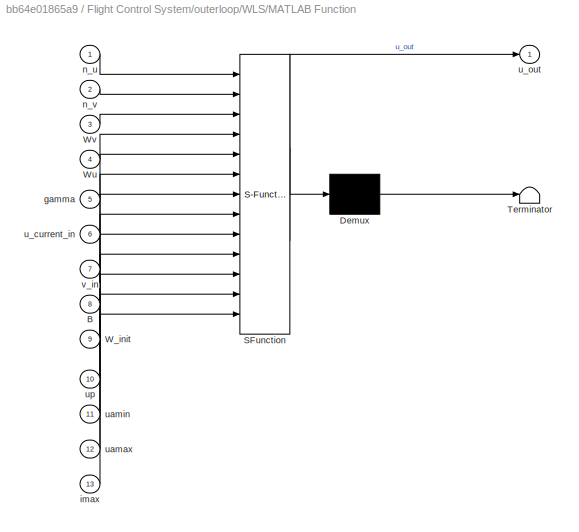
BLOCK [SubSystem] Flight Control System/outerloop/WLS/MATLAB Function
  ErrorFcn = Stateflow.Translate.translate
  PermitHierarchicalResolution = ExplicitOnly
  Ports = [13, 1]
  RequestExecContextInheritance = off
  SFBlockType = MATLAB Function
  TreatAsAtomicUnit = on
BLOCK [Demux] Flight Control System/outerloop/WLS/MATLAB Function/ Demux 
  Outputs = 1
  Ports = [1, 1]
BLOCK [S-Function] Flight Control System/outerloop/WLS/MATLAB Function/ SFunction 
  EnableBusSupport = on
  FunctionName = sf_sfun
  PortCounts = [13 2]
  Ports = [13, 2]
  SFcnIsStateOwnerBlock = off
  SFunctionDeploymentMode = off
  Tag = Stateflow S-Function 9
BLOCK [Terminator] Flight Control System/outerloop/WLS/MATLAB Function/ Terminator 
BLOCK [Inport] Flight Control System/outerloop/WLS/MATLAB Function/B
  Port = 8
BLOCK [Inport] Flight Control System/outerloop/WLS/MATLAB Function/W_init
  Port = 9
BLOCK [Inport] Flight Control System/outerloop/WLS/MATLAB Function/Wu
  Port = 4
BLOCK [Inport] Flight Control System/outerloop/WLS/MATLAB Function/Wv
  Port = 3
BLOCK [Inport] Flight Control System/outerloop/WLS/MATLAB Function/gamma
  Port = 5
BLOCK [Inport] Flight Control System/outerloop/WLS/MATLAB Function/imax
  Port = 13
BLOCK [Inport] Flight Control System/outerloop/WLS/MATLAB Function/n_u
BLOCK [Inport] Flight Control System/outerloop/WLS/MATLAB Function/n_v
  Port = 2
BLOCK [Inport] Flight Control System/outerloop/WLS/MATLAB Function/u_current_in
  Port = 6
BLOCK [Outport] Flight Control System/outerloop/WLS/MATLAB Function/u_out
BLOCK [Inport] Flight Control System/outerloop/WLS/MATLAB Function/uamax
  Port = 12
BLOCK [Inport] Flight Control System/outerloop/WLS/MATLAB Function/uamin
  Port = 11
BLOCK [Inport] Flight Control System/outerloop/WLS/MATLAB Function/up
  Port = 10
BLOCK [Inport] Flight Control System/outerloop/WLS/MATLAB Function/v_in
  Port = 7
BLOCK [Mux] Flight Control System/outerloop/WLS/Mux
  DisplayOption = bar
  Inputs = 3
  Ports = [3, 1]
BLOCK [Inport] Flight Control System/outerloop/WLS/T
  Port = 2
BLOCK [Outport] Flight Control System/outerloop/WLS/u
BLOCK [Constant] Flight Control System/outerloop/psi ref
  Value = -0.3038240740740741
BLOCK [Gain] Gain
  Gain = -1
BLOCK [Gain] Gain1
BLOCK [Gain] Gain2
  Gain = -1
BLOCK [Gain] Gain3
  Gain = -1
BLOCK [Gain] Gain4
  Gain = -1
BLOCK [Mux] Mux
  DisplayOption = bar
  Inputs = 3
  Ports = [3, 1]
BLOCK [Mux] Mux1
  DisplayOption = bar
  Inputs = 3
  Ports = [3, 1]
BLOCK [Mux] Mux2
  DisplayOption = bar
  Inputs = 3
  Ports = [3, 1]
BLOCK [Reference] Rotation Angles to Quaternions  REF=sharedtransform/Rotation Angles to Quaternions
  AttributesFormatString = Rotation Order: %<rotationOrder>
  Commented = on
  Ports = [1, 1]
  SourceBlock = sharedtransform/Rotation Angles to Quaternions
  SourceProductBaseCode = AE,PW,DR,MT,UV,VE
  SourceType = Ang2Quat
BLOCK [Reference] Simulation 3D Scene Configuration1  REF=sim3dlib/Simulation 3D Scene Configuration
  Ports = []
  Priority = 0
  SourceBlock = sim3dlib/Simulation 3D Scene Configuration
  SourceProductBaseCode = AE,DR,UV,VE
  SourceType = Simulation 3D Scene Configuration
BLOCK [Reference] Simulation 3D UAV Vehicle  REF=uavsim3dlib/Simulation 3D UAV Vehicle
  Ports = [2]
  Priority = -1
  SourceBlock = uavsim3dlib/Simulation 3D UAV Vehicle
  SourceProductBaseCode = UV
  SourceType = Simulation 3D UAV Vehicle
BLOCK [SliderBlock] Slider
  ScaleMin = -100
BLOCK [SliderBlock] Slider1
  ScaleMax = 0
  ScaleMin = -100
BLOCK [SliderBlock] Slider2
  ScaleMin = -100
BLOCK [SliderBlock] Slider3
  ScaleMax = 3.14
  ScaleMin = -3.14
BLOCK [Step] Step
  After = 50
  SampleTime = 0
  Time = 3
BLOCK [Step] Step1
  After = 100
  SampleTime = 0
  Time = 3
BLOCK [Step] Step2
  After = -25
  SampleTime = 0
  Time = 4
BLOCK [Reference] UAV Animation  REF=uavutilslib/UAV Animation
  Commented = on
  Ports = [2]
  SourceBlock = uavutilslib/UAV Animation
  SourceProductBaseCode = UV
  SourceType = uav.sluav.internal.system.UAVAnimation
BLOCK [Constant] xdref
  SampleTime = Ts
  Value = -11.38310185185185
BLOCK [Constant] xeref
  SampleTime = Ts
  Value = 0.5671296296296333
BLOCK [Constant] xnref
  SampleTime = Ts
  Value = 84.27083333333334
LINE Data Store Read1:1 -> UAV Animation:1
LINE Data Store Read2:1 -> Demux:1
LINE Data Store Read3:1 -> Demux1:1
LINE Data Store Read:1 -> Rotation Angles to Quaternions:1
LINE Demux1:1 -> Gain3:1
LINE Demux1:2 -> Gain2:1
LINE Demux1:3 -> Gain1:1
LINE Demux:1 -> Mux1:1
LINE Demux:2 -> Gain4:1
LINE Demux:3 -> Gain:1
NET Flight Control System/Discrete Transfer Fcn1:1 -> Flight Control System/Out1:1, Flight Control System/Position plot:2, Flight Control System/Save Position:1, Flight Control System/Sum1:2
NET Flight Control System/Discrete Transfer Fcn:1 -> Flight Control System/Discrete Transfer Fcn1:1, Flight Control System/Save Velocity:1, Flight Control System/Sum5:2
LINE Flight Control System/Gain1:1 -> Flight Control System/Subsystem:1
LINE Flight Control System/Gain:1 -> Flight Control System/outerloop:1
NET Flight Control System/In1:1 -> Flight Control System/Position plot:1, Flight Control System/Sum1:1
LINE Flight Control System/Position plot/Demux1:1 -> Flight Control System/Position plot/Mux:2
LINE Flight Control System/Position plot/Demux1:2 -> Flight Control System/Position plot/Mux1:2
LINE Flight Control System/Position plot/Demux1:3 -> Flight Control System/Position plot/Mux3:2
LINE Flight Control System/Position plot/Demux:1 -> Flight Control System/Position plot/Mux:1
LINE Flight Control System/Position plot/Demux:2 -> Flight Control System/Position plot/Mux1:1
LINE Flight Control System/Position plot/Demux:3 -> Flight Control System/Position plot/Mux3:1
LINE Flight Control System/Position plot/In1:1 -> Flight Control System/Position plot/Demux:1
LINE Flight Control System/Position plot/In4:1 -> Flight Control System/Position plot/Demux1:1
LINE Flight Control System/Position plot/Mux1:1 -> Flight Control System/Position plot/Position Plotter:2
LINE Flight Control System/Position plot/Mux3:1 -> Flight Control System/Position plot/Position Plotter:3
LINE Flight Control System/Position plot/Mux:1 -> Flight Control System/Position plot/Position Plotter:1
LINE Flight Control System/Save Position/Demux:1 -> Flight Control System/Save Position/Mux4:1
LINE Flight Control System/Save Position/Demux:2 -> Flight Control System/Save Position/Mux4:2
LINE Flight Control System/Save Position/Demux:3 -> Flight Control System/Save Position/Mux4:3
LINE Flight Control System/Save Position/In1:1 -> Flight Control System/Save Position/Demux:1
LINE Flight Control System/Save Position/Mux4:1 -> Flight Control System/Save Position/Data Store Write:1
NET Flight Control System/Save Velocity/Demux:1 -> Flight Control System/Save Velocity/Mux4:1, Flight Control System/Save Velocity/Mux:1
NET Flight Control System/Save Velocity/Demux:2 -> Flight Control System/Save Velocity/Mux4:2, Flight Control System/Save Velocity/Mux:2
LINE Flight Control System/Save Velocity/Demux:3 -> Flight Control System/Save Velocity/Mux4:3
LINE Flight Control System/Save Velocity/Dot Product:1 -> Flight Control System/Save Velocity/Square Root:1
LINE Flight Control System/Save Velocity/In1:1 -> Flight Control System/Save Velocity/Demux:1
LINE Flight Control System/Save Velocity/Mux4:1 -> Flight Control System/Save Velocity/Data Store Write:1
NET Flight Control System/Save Velocity/Mux:1 -> Flight Control System/Save Velocity/Dot Product:1, Flight Control System/Save Velocity/Dot Product:2
NET Flight Control System/Save Velocity/Square Root:1 -> Flight Control System/Save Velocity/Data Store Write1:1, Flight Control System/Save Velocity/Scope:1
LINE Flight Control System/Subsystem/Constant:1 -> Flight Control System/Subsystem/Divide:1
LINE Flight Control System/Subsystem/Demux1:1 -> Flight Control System/Subsystem/Mux:1
LINE Flight Control System/Subsystem/Demux1:2 -> Flight Control System/Subsystem/Mux:2
LINE Flight Control System/Subsystem/Demux:1 -> Flight Control System/Subsystem/Mux1:1
LINE Flight Control System/Subsystem/Demux:2 -> Flight Control System/Subsystem/Mux1:2
LINE Flight Control System/Subsystem/Demux:3 -> Flight Control System/Subsystem/Mux:3
LINE Flight Control System/Subsystem/Divide:1 -> Flight Control System/Subsystem/Saturation:1
LINE Flight Control System/Subsystem/Dot Product:1 -> Flight Control System/Subsystem/Square Root:1
LINE Flight Control System/Subsystem/In4:1 -> Flight Control System/Subsystem/Demux:1
NET Flight Control System/Subsystem/Mux1:1 -> Flight Control System/Subsystem/Dot Product:1, Flight Control System/Subsystem/Dot Product:2, Flight Control System/Subsystem/Product:2
LINE Flight Control System/Subsystem/Mux:1 -> Flight Control System/Subsystem/Out4:1
LINE Flight Control System/Subsystem/Product:1 -> Flight Control System/Subsystem/Demux1:1
LINE Flight Control System/Subsystem/Saturation:1 -> Flight Control System/Subsystem/Product:1
LINE Flight Control System/Subsystem/Square Root:1 -> Flight Control System/Subsystem/Divide:2
LINE Flight Control System/Subsystem:1 -> Flight Control System/Sum5:1
LINE Flight Control System/Sum1:1 -> Flight Control System/Gain1:1
LINE Flight Control System/Sum5:1 -> Flight Control System/Gain:1
NET Flight Control System/outerloop/Acceleration set-point Limiter:1 -> Flight Control System/outerloop/Linear acc plotter:1, Flight Control System/outerloop/Sum:1
NET Flight Control System/outerloop/Attitude Controller/Attitude limits:1 -> Flight Control System/outerloop/Attitude Controller/Plot attitude controller:1, Flight Control System/outerloop/Attitude Controller/Sum1:1
NET Flight Control System/outerloop/Attitude Controller/Discrete Transfer Fcn1:1 -> Flight Control System/outerloop/Attitude Controller/Out1:1, Flight Control System/outerloop/Attitude Controller/Plot attitude controller:3, Flight Control System/outerloop/Attitude Controller/Save Attitude:1, Flight Control System/outerloop/Attitude Controller/Sum1:2
NET Flight Control System/outerloop/Attitude Controller/Discrete Transfer Fcn:1 -> Flight Control System/outerloop/Attitude Controller/Discrete Transfer Fcn1:1, Flight Control System/outerloop/Attitude Controller/Sum5:2
LINE Flight Control System/outerloop/Attitude Controller/Gain1:1 -> Flight Control System/outerloop/Attitude Controller/Sum5:1
LINE Flight Control System/outerloop/Attitude Controller/Gain:1 -> Flight Control System/outerloop/Attitude Controller/Inner loop:1
LINE Flight Control System/outerloop/Attitude Controller/In1:1 -> Flight Control System/outerloop/Attitude Controller/Attitude limits:1
NET Flight Control System/outerloop/Attitude Controller/In2:1 -> Flight Control System/outerloop/Attitude Controller/Inner loop:2, Flight Control System/outerloop/Attitude Controller/Plot attitude controller:2
NET Flight Control System/outerloop/Attitude Controller/Inner loop/  :1 -> Flight Control System/outerloop/Attitude Controller/Inner loop/Discrete Transfer Fcn2:1, Flight Control System/outerloop/Attitude Controller/Inner loop/MAV:1, Flight Control System/outerloop/Attitude Controller/Inner loop/Plot Actuators:2
NET Flight Control System/outerloop/Attitude Controller/Inner loop/ :1 -> Flight Control System/outerloop/Attitude Controller/Inner loop/Sum3:2, Flight Control System/outerloop/Attitude Controller/Inner loop/WLS:1
LINE Flight Control System/outerloop/Attitude Controller/Inner loop/Demux:1 -> Flight Control System/outerloop/Attitude Controller/Inner loop/Mux:2
LINE Flight Control System/outerloop/Attitude Controller/Inner loop/Demux:2 -> Flight Control System/outerloop/Attitude Controller/Inner loop/Mux:3
LINE Flight Control System/outerloop/Attitude Controller/Inner loop/Demux:3 -> Flight Control System/outerloop/Attitude Controller/Inner loop/Mux:4
LINE Flight Control System/outerloop/Attitude Controller/Inner loop/Discrete Transfer Fcn1:1 -> Flight Control System/outerloop/Attitude Controller/Inner loop/H(z):1
LINE Flight Control System/outerloop/Attitude Controller/Inner loop/Discrete Transfer Fcn2:1 -> Flight Control System/outerloop/Attitude Controller/Inner loop/ :1
LINE Flight Control System/outerloop/Attitude Controller/Inner loop/Discrete Transfer Fcn3:1 -> Flight Control System/outerloop/Attitude Controller/Inner loop/Sum5:2
LINE Flight Control System/outerloop/Attitude Controller/Inner loop/Discrete Transfer Fcn4:1 -> Flight Control System/outerloop/Attitude Controller/Inner loop/Gain1:1
LINE Flight Control System/outerloop/Attitude Controller/Inner loop/Discrete Transfer Fcn:1 -> Flight Control System/outerloop/Attitude Controller/Inner loop/Discrete Transfer Fcn1:1
LINE Flight Control System/outerloop/Attitude Controller/Inner loop/Gain1:1 -> Flight Control System/outerloop/Attitude Controller/Inner loop/Sum1:2
LINE Flight Control System/outerloop/Attitude Controller/Inner loop/Gain2:1 -> Flight Control System/outerloop/Attitude Controller/Inner loop/Sum3:1
LINE Flight Control System/outerloop/Attitude Controller/Inner loop/H(z):1 -> Flight Control System/outerloop/Attitude Controller/Inner loop/Discrete Transfer Fcn3:1
LINE Flight Control System/outerloop/Attitude Controller/Inner loop/In2:1 -> Flight Control System/outerloop/Attitude Controller/Inner loop/Mux:1
LINE Flight Control System/outerloop/Attitude Controller/Inner loop/Input:1 -> Flight Control System/outerloop/Attitude Controller/Inner loop/Sum5:1
LINE Flight Control System/outerloop/Attitude Controller/Inner loop/MAV/Demux:1 -> Flight Control System/outerloop/Attitude Controller/Inner loop/MAV/Out2:1
LINE Flight Control System/outerloop/Attitude Controller/Inner loop/MAV/Demux:2 -> Flight Control System/outerloop/Attitude Controller/Inner loop/MAV/Mux:1
LINE Flight Control System/outerloop/Attitude Controller/Inner loop/MAV/Demux:3 -> Flight Control System/outerloop/Attitude Controller/Inner loop/MAV/Mux:2
LINE Flight Control System/outerloop/Attitude Controller/Inner loop/MAV/Demux:4 -> Flight Control System/outerloop/Attitude Controller/Inner loop/MAV/Mux:3
NET Flight Control System/outerloop/Attitude Controller/Inner loop/MAV/Discrete Transfer Fcn1:1 -> Flight Control System/outerloop/Attitude Controller/Inner loop/MAV/Discrete Transfer Fcn2:1, Flight Control System/outerloop/Attitude Controller/Inner loop/MAV/Gain:1
LINE Flight Control System/outerloop/Attitude Controller/Inner loop/MAV/Discrete Transfer Fcn2:1 -> Flight Control System/outerloop/Attitude Controller/Inner loop/MAV/Gain1:1
LINE Flight Control System/outerloop/Attitude Controller/Inner loop/MAV/Discrete Transfer Fcn3:1 -> Flight Control System/outerloop/Attitude Controller/Inner loop/MAV/Sum3:1
LINE Flight Control System/outerloop/Attitude Controller/Inner loop/MAV/Disturbance:1 -> Flight Control System/outerloop/Attitude Controller/Inner loop/MAV/Sum3:2
LINE Flight Control System/outerloop/Attitude Controller/Inner loop/MAV/Gain1:1 -> Flight Control System/outerloop/Attitude Controller/Inner loop/MAV/Sum:2
LINE Flight Control System/outerloop/Attitude Controller/Inner loop/MAV/Gain:1 -> Flight Control System/outerloop/Attitude Controller/Inner loop/MAV/Sum:1
LINE Flight Control System/outerloop/Attitude Controller/Inner loop/MAV/In1:1 -> Flight Control System/outerloop/Attitude Controller/Inner loop/MAV/Discrete Transfer Fcn1:1
LINE Flight Control System/outerloop/Attitude Controller/Inner loop/MAV/Mux:1 -> Flight Control System/outerloop/Attitude Controller/Inner loop/MAV/Out1:1
LINE Flight Control System/outerloop/Attitude Controller/Inner loop/MAV/Sum3:1 -> Flight Control System/outerloop/Attitude Controller/Inner loop/MAV/Demux:1
LINE Flight Control System/outerloop/Attitude Controller/Inner loop/MAV/Sum:1 -> Flight Control System/outerloop/Attitude Controller/Inner loop/MAV/Discrete Transfer Fcn3:1
NET Flight Control System/outerloop/Attitude Controller/Inner loop/MAV:1 -> Flight Control System/outerloop/Attitude Controller/Inner loop/Discrete Transfer Fcn:1, Flight Control System/outerloop/Attitude Controller/Inner loop/Out1:1
LINE Flight Control System/outerloop/Attitude Controller/Inner loop/MAV:2 -> Flight Control System/outerloop/Attitude Controller/Inner loop/Out2:1
NET Flight Control System/outerloop/Attitude Controller/Inner loop/Motor limits:1 -> Flight Control System/outerloop/Attitude Controller/Inner loop/  :1, Flight Control System/outerloop/Attitude Controller/Inner loop/Plot Actuators:1
LINE Flight Control System/outerloop/Attitude Controller/Inner loop/Mux:1 -> Flight Control System/outerloop/Attitude Controller/Inner loop/Sum1:1
LINE Flight Control System/outerloop/Attitude Controller/Inner loop/Plot Actuators/Demux1:1 -> Flight Control System/outerloop/Attitude Controller/Inner loop/Plot Actuators/Mux:2
LINE Flight Control System/outerloop/Attitude Controller/Inner loop/Plot Actuators/Demux1:2 -> Flight Control System/outerloop/Attitude Controller/Inner loop/Plot Actuators/Mux2:2
LINE Flight Control System/outerloop/Attitude Controller/Inner loop/Plot Actuators/Demux1:3 -> Flight Control System/outerloop/Attitude Controller/Inner loop/Plot Actuators/Mux1:2
LINE Flight Control System/outerloop/Attitude Controller/Inner loop/Plot Actuators/Demux1:4 -> Flight Control System/outerloop/Attitude Controller/Inner loop/Plot Actuators/Mux3:2
LINE Flight Control System/outerloop/Attitude Controller/Inner loop/Plot Actuators/Demux:1 -> Flight Control System/outerloop/Attitude Controller/Inner loop/Plot Actuators/Mux:1
LINE Flight Control System/outerloop/Attitude Controller/Inner loop/Plot Actuators/Demux:2 -> Flight Control System/outerloop/Attitude Controller/Inner loop/Plot Actuators/Mux2:1
LINE Flight Control System/outerloop/Attitude Controller/Inner loop/Plot Actuators/Demux:3 -> Flight Control System/outerloop/Attitude Controller/Inner loop/Plot Actuators/Mux1:1
LINE Flight Control System/outerloop/Attitude Controller/Inner loop/Plot Actuators/Demux:4 -> Flight Control System/outerloop/Attitude Controller/Inner loop/Plot Actuators/Mux3:1
LINE Flight Control System/outerloop/Attitude Controller/Inner loop/Plot Actuators/Mux1:1 -> Flight Control System/outerloop/Attitude Controller/Inner loop/Plot Actuators/Motor State:3
LINE Flight Control System/outerloop/Attitude Controller/Inner loop/Plot Actuators/Mux2:1 -> Flight Control System/outerloop/Attitude Controller/Inner loop/Plot Actuators/Motor State:2
LINE Flight Control System/outerloop/Attitude Controller/Inner loop/Plot Actuators/Mux3:1 -> Flight Control System/outerloop/Attitude Controller/Inner loop/Plot Actuators/Motor State:4
LINE Flight Control System/outerloop/Attitude Controller/Inner loop/Plot Actuators/Mux:1 -> Flight Control System/outerloop/Attitude Controller/Inner loop/Plot Actuators/Motor State:1
LINE Flight Control System/outerloop/Attitude Controller/Inner loop/Plot Actuators/w:1 -> Flight Control System/outerloop/Attitude Controller/Inner loop/Plot Actuators/Demux1:1
LINE Flight Control System/outerloop/Attitude Controller/Inner loop/Plot Actuators/w_c:1 -> Flight Control System/outerloop/Attitude Controller/Inner loop/Plot Actuators/Demux:1
NET Flight Control System/outerloop/Attitude Controller/Inner loop/Sum1:1 -> Flight Control System/outerloop/Attitude Controller/Inner loop/Scope:1, Flight Control System/outerloop/Attitude Controller/Inner loop/WLS:2
LINE Flight Control System/outerloop/Attitude Controller/Inner loop/Sum3:1 -> Flight Control System/outerloop/Attitude Controller/Inner loop/Motor limits:1
LINE Flight Control System/outerloop/Attitude Controller/Inner loop/Sum5:1 -> Flight Control System/outerloop/Attitude Controller/Inner loop/Demux:1
LINE Flight Control System/outerloop/Attitude Controller/Inner loop/WLS/Constant10:1 -> Flight Control System/outerloop/Attitude Controller/Inner loop/WLS/MATLAB Function:13
LINE Flight Control System/outerloop/Attitude Controller/Inner loop/WLS/Constant1:1 -> Flight Control System/outerloop/Attitude Controller/Inner loop/WLS/MATLAB Function:2
LINE Flight Control System/outerloop/Attitude Controller/Inner loop/WLS/Constant2:1 -> Flight Control System/outerloop/Attitude Controller/Inner loop/WLS/MATLAB Function:3
LINE Flight Control System/outerloop/Attitude Controller/Inner loop/WLS/Constant3:1 -> Flight Control System/outerloop/Attitude Controller/Inner loop/WLS/MATLAB Function:4
LINE Flight Control System/outerloop/Attitude Controller/Inner loop/WLS/Constant4:1 -> Flight Control System/outerloop/Attitude Controller/Inner loop/WLS/MATLAB Function:5
LINE Flight Control System/outerloop/Attitude Controller/Inner loop/WLS/Constant5:1 -> Flight Control System/outerloop/Attitude Controller/Inner loop/WLS/MATLAB Function:8
LINE Flight Control System/outerloop/Attitude Controller/Inner loop/WLS/Constant6:1 -> Flight Control System/outerloop/Attitude Controller/Inner loop/WLS/MATLAB Function:9
LINE Flight Control System/outerloop/Attitude Controller/Inner loop/WLS/Constant7:1 -> Flight Control System/outerloop/Attitude Controller/Inner loop/WLS/MATLAB Function:10
LINE Flight Control System/outerloop/Attitude Controller/Inner loop/WLS/Constant8:1 -> Flight Control System/outerloop/Attitude Controller/Inner loop/WLS/MATLAB Function:11
LINE Flight Control System/outerloop/Attitude Controller/Inner loop/WLS/Constant9:1 -> Flight Control System/outerloop/Attitude Controller/Inner loop/WLS/MATLAB Function:12
LINE Flight Control System/outerloop/Attitude Controller/Inner loop/WLS/Constant:1 -> Flight Control System/outerloop/Attitude Controller/Inner loop/WLS/MATLAB Function:1
LINE Flight Control System/outerloop/Attitude Controller/Inner loop/WLS/Input1:1 -> Flight Control System/outerloop/Attitude Controller/Inner loop/WLS/MATLAB Function:6
LINE Flight Control System/outerloop/Attitude Controller/Inner loop/WLS/Input:1 -> Flight Control System/outerloop/Attitude Controller/Inner loop/WLS/MATLAB Function:7
LINE Flight Control System/outerloop/Attitude Controller/Inner loop/WLS/MATLAB Function:1 -> Flight Control System/outerloop/Attitude Controller/Inner loop/WLS/u:1
NET Flight Control System/outerloop/Attitude Controller/Inner loop/WLS:1 -> Flight Control System/outerloop/Attitude Controller/Inner loop/Discrete Transfer Fcn4:1, Flight Control System/outerloop/Attitude Controller/Inner loop/Gain2:1, Flight Control System/outerloop/Attitude Controller/Inner loop/Scope:2
LINE Flight Control System/outerloop/Attitude Controller/Inner loop:1 -> Flight Control System/outerloop/Attitude Controller/Discrete Transfer Fcn:1
NET Flight Control System/outerloop/Attitude Controller/Inner loop:2 -> Flight Control System/outerloop/Attitude Controller/Plot attitude controller:4, Flight Control System/outerloop/Attitude Controller/T:1
LINE Flight Control System/outerloop/Attitude Controller/Plot attitude controller/Constant1:1 -> Flight Control System/outerloop/Attitude Controller/Plot attitude controller/Mux2:1
LINE Flight Control System/outerloop/Attitude Controller/Plot attitude controller/Constant3:1 -> Flight Control System/outerloop/Attitude Controller/Plot attitude controller/Mux2:3
LINE Flight Control System/outerloop/Attitude Controller/Plot attitude controller/Demux1:1 -> Flight Control System/outerloop/Attitude Controller/Plot attitude controller/Mux3:2
LINE Flight Control System/outerloop/Attitude Controller/Plot attitude controller/Demux1:2 -> Flight Control System/outerloop/Attitude Controller/Plot attitude controller/Mux4:2
LINE Flight Control System/outerloop/Attitude Controller/Plot attitude controller/Demux1:3 -> Flight Control System/outerloop/Attitude Controller/Plot attitude controller/Mux5:2
LINE Flight Control System/outerloop/Attitude Controller/Plot attitude controller/Demux:1 -> Flight Control System/outerloop/Attitude Controller/Plot attitude controller/Mux3:1
LINE Flight Control System/outerloop/Attitude Controller/Plot attitude controller/Demux:2 -> Flight Control System/outerloop/Attitude Controller/Plot attitude controller/Mux4:1
LINE Flight Control System/outerloop/Attitude Controller/Plot attitude controller/Demux:3 -> Flight Control System/outerloop/Attitude Controller/Plot attitude controller/Mux5:1
LINE Flight Control System/outerloop/Attitude Controller/Plot attitude controller/Gain5:1 -> Flight Control System/outerloop/Attitude Controller/Plot attitude controller/Mux2:2
LINE Flight Control System/outerloop/Attitude Controller/Plot attitude controller/In1:1 -> Flight Control System/outerloop/Attitude Controller/Plot attitude controller/Demux1:1
LINE Flight Control System/outerloop/Attitude Controller/Plot attitude controller/In2:1 -> Flight Control System/outerloop/Attitude Controller/Plot attitude controller/Mux:2
LINE Flight Control System/outerloop/Attitude Controller/Plot attitude controller/In3:1 -> Flight Control System/outerloop/Attitude Controller/Plot attitude controller/Demux:1
LINE Flight Control System/outerloop/Attitude Controller/Plot attitude controller/In4:1 -> Flight Control System/outerloop/Attitude Controller/Plot attitude controller/Mux:1
LINE Flight Control System/outerloop/Attitude Controller/Plot attitude controller/Mux3:1 -> Flight Control System/outerloop/Attitude Controller/Plot attitude controller/Attitude plot:1
LINE Flight Control System/outerloop/Attitude Controller/Plot attitude controller/Mux4:1 -> Flight Control System/outerloop/Attitude Controller/Plot attitude controller/Attitude plot:2
LINE Flight Control System/outerloop/Attitude Controller/Plot attitude controller/Mux5:1 -> Flight Control System/outerloop/Attitude Controller/Plot attitude controller/Attitude plot:3
LINE Flight Control System/outerloop/Attitude Controller/Plot attitude controller/Mux:1 -> Flight Control System/outerloop/Attitude Controller/Plot attitude controller/Attitude plot:4
LINE Flight Control System/outerloop/Attitude Controller/Plot attitude controller/Step:1 -> Flight Control System/outerloop/Attitude Controller/Plot attitude controller/Gain5:1
LINE Flight Control System/outerloop/Attitude Controller/Save Attitude/Demux:1 -> Flight Control System/outerloop/Attitude Controller/Save Attitude/Mux:3
LINE Flight Control System/outerloop/Attitude Controller/Save Attitude/Demux:2 -> Flight Control System/outerloop/Attitude Controller/Save Attitude/Mux:2
LINE Flight Control System/outerloop/Attitude Controller/Save Attitude/Demux:3 -> Flight Control System/outerloop/Attitude Controller/Save Attitude/Mux:1
LINE Flight Control System/outerloop/Attitude Controller/Save Attitude/In1:1 -> Flight Control System/outerloop/Attitude Controller/Save Attitude/Demux:1
LINE Flight Control System/outerloop/Attitude Controller/Save Attitude/Mux:1 -> Flight Control System/outerloop/Attitude Controller/Save Attitude/Data Store Write:1
LINE Flight Control System/outerloop/Attitude Controller/Sum1:1 -> Flight Control System/outerloop/Attitude Controller/Gain1:1
LINE Flight Control System/outerloop/Attitude Controller/Sum5:1 -> Flight Control System/outerloop/Attitude Controller/Gain:1
NET Flight Control System/outerloop/Attitude Controller:1 -> Flight Control System/outerloop/Demux2:1, Flight Control System/outerloop/Gn_calculator:1, Flight Control System/outerloop/Simulation Environment:1
NET Flight Control System/outerloop/Attitude Controller:2 -> Flight Control System/outerloop/Gn_calculator:2, Flight Control System/outerloop/Simulation Environment:2, Flight Control System/outerloop/WLS:2
LINE Flight Control System/outerloop/Data Store Read1:1 -> Flight Control System/outerloop/Product:1
LINE Flight Control System/outerloop/Demux2:1 -> Flight Control System/outerloop/Mux7:1
LINE Flight Control System/outerloop/Demux2:2 -> Flight Control System/outerloop/Mux7:2
LINE Flight Control System/outerloop/Demux:1 -> Flight Control System/outerloop/Mux:1
LINE Flight Control System/outerloop/Demux:2 -> Flight Control System/outerloop/Mux:2
LINE Flight Control System/outerloop/Demux:3 -> Flight Control System/outerloop/Attitude Controller:2
LINE Flight Control System/outerloop/Discrete Transfer Fcn1:1 -> Flight Control System/outerloop/H(z):1
LINE Flight Control System/outerloop/Discrete Transfer Fcn2:1 -> Flight Control System/outerloop/H(z)1:1
LINE Flight Control System/outerloop/Gain:1 -> Flight Control System/outerloop/WLS:1
NET Flight Control System/outerloop/Gn_calculator/Demux:1 -> Flight Control System/outerloop/Gn_calculator/Gn:2, Flight Control System/outerloop/Gn_calculator/Gn_inv:2
NET Flight Control System/outerloop/Gn_calculator/Demux:2 -> Flight Control System/outerloop/Gn_calculator/Gn:3, Flight Control System/outerloop/Gn_calculator/Gn_inv:3
NET Flight Control System/outerloop/Gn_calculator/Demux:3 -> Flight Control System/outerloop/Gn_calculator/Gn:4, Flight Control System/outerloop/Gn_calculator/Gn_inv:4
LINE Flight Control System/outerloop/Gn_calculator/In1:1 -> Flight Control System/outerloop/Gn_calculator/Demux:1
NET Flight Control System/outerloop/Gn_calculator/T:1 -> Flight Control System/outerloop/Gn_calculator/Gn:1, Flight Control System/outerloop/Gn_calculator/Gn_inv:1
LINE Flight Control System/outerloop/H(z)1:1 -> Flight Control System/outerloop/Sum1:2
LINE Flight Control System/outerloop/H(z):1 -> Flight Control System/outerloop/Sum:2
NET Flight Control System/outerloop/Heading controller/Constant:1 -> Flight Control System/outerloop/Heading controller/MATLAB Function1:4, Flight Control System/outerloop/Heading controller/MATLAB Function:3
LINE Flight Control System/outerloop/Heading controller/Data Store Read1:1 -> Flight Control System/outerloop/Heading controller/Demux:1
LINE Flight Control System/outerloop/Heading controller/Data Store Read2:1 -> Flight Control System/outerloop/Heading controller/Demux1:1
LINE Flight Control System/outerloop/Heading controller/Data Store Read3:1 -> Flight Control System/outerloop/Heading controller/Demux2:1
NET Flight Control System/outerloop/Heading controller/Data Store Read:1 -> Flight Control System/outerloop/Heading controller/MATLAB Function1:3, Flight Control System/outerloop/Heading controller/MATLAB Function:1, Flight Control System/outerloop/Heading controller/Scope:1, Flight Control System/outerloop/Heading controller/Switch:2
LINE Flight Control System/outerloop/Heading controller/Demux1:1 -> Flight Control System/outerloop/Heading controller/MATLAB Function1:1
LINE Flight Control System/outerloop/Heading controller/Demux1:2 -> Flight Control System/outerloop/Heading controller/MATLAB Function1:2
LINE Flight Control System/outerloop/Heading controller/Demux2:1 -> Flight Control System/outerloop/Heading controller/Switch:3
LINE Flight Control System/outerloop/Heading controller/Demux:1 -> Flight Control System/outerloop/Heading controller/Sum1:1
LINE Flight Control System/outerloop/Heading controller/Demux:3 -> Flight Control System/outerloop/Heading controller/MATLAB Function:2
LINE Flight Control System/outerloop/Heading controller/Discrete Transfer Fcn:1 -> Flight Control System/outerloop/Heading controller/Switch:1
LINE Flight Control System/outerloop/Heading controller/Gain:1 -> Flight Control System/outerloop/Heading controller/Sum:2
NET Flight Control System/outerloop/Heading controller/MATLAB Function1:1 -> Flight Control System/outerloop/Heading controller/Scope1:1, Flight Control System/outerloop/Heading controller/Sum1:2
LINE Flight Control System/outerloop/Heading controller/MATLAB Function:1 -> Flight Control System/outerloop/Heading controller/Sum:1
LINE Flight Control System/outerloop/Heading controller/Sum1:1 -> Flight Control System/outerloop/Heading controller/Gain:1
LINE Flight Control System/outerloop/Heading controller/Sum:1 -> Flight Control System/outerloop/Heading controller/Discrete Transfer Fcn:1
LINE Flight Control System/outerloop/Heading controller/Switch:1 -> Flight Control System/outerloop/Heading controller/Out1:1
LINE Flight Control System/outerloop/In1:1 -> Flight Control System/outerloop/Acceleration set-point Limiter:1
LINE Flight Control System/outerloop/Linear acc plotter/Constant1:1 -> Flight Control System/outerloop/Linear acc plotter/Mux2:1
LINE Flight Control System/outerloop/Linear acc plotter/Constant2:1 -> Flight Control System/outerloop/Linear acc plotter/Mux2:2
LINE Flight Control System/outerloop/Linear acc plotter/Constant3:1 -> Flight Control System/outerloop/Linear acc plotter/Mux2:3
LINE Flight Control System/outerloop/Linear acc plotter/Demux1:1 -> Flight Control System/outerloop/Linear acc plotter/Mux1:1
LINE Flight Control System/outerloop/Linear acc plotter/Demux1:2 -> Flight Control System/outerloop/Linear acc plotter/Mux3:1
LINE Flight Control System/outerloop/Linear acc plotter/Demux1:3 -> Flight Control System/outerloop/Linear acc plotter/Mux4:1
LINE Flight Control System/outerloop/Linear acc plotter/Demux2:1 -> Flight Control System/outerloop/Linear acc plotter/Mux1:2
LINE Flight Control System/outerloop/Linear acc plotter/Demux2:2 -> Flight Control System/outerloop/Linear acc plotter/Mux3:2
LINE Flight Control System/outerloop/Linear acc plotter/Demux2:3 -> Flight Control System/outerloop/Linear acc plotter/Mux4:2
LINE Flight Control System/outerloop/Linear acc plotter/In1:1 -> Flight Control System/outerloop/Linear acc plotter/Demux2:1
LINE Flight Control System/outerloop/Linear acc plotter/In2:1 -> Flight Control System/outerloop/Linear acc plotter/Demux1:1
LINE Flight Control System/outerloop/Linear acc plotter/Mux1:1 -> Flight Control System/outerloop/Linear acc plotter/Scope:1
LINE Flight Control System/outerloop/Linear acc plotter/Mux3:1 -> Flight Control System/outerloop/Linear acc plotter/Scope:2
LINE Flight Control System/outerloop/Linear acc plotter/Mux4:1 -> Flight Control System/outerloop/Linear acc plotter/Scope:3
LINE Flight Control System/outerloop/Mux7:1 -> Flight Control System/outerloop/Discrete Transfer Fcn2:1
LINE Flight Control System/outerloop/Mux8:1 -> Flight Control System/outerloop/Attitude Controller:1
LINE Flight Control System/outerloop/Mux:1 -> Flight Control System/outerloop/Sum1:1
LINE Flight Control System/outerloop/Simulation Environment/Band-Limited White Noise:1 -> Flight Control System/outerloop/Simulation Environment/Sum:2
LINE Flight Control System/outerloop/Simulation Environment/Constant:1 -> Flight Control System/outerloop/Simulation Environment/Sum2:2
LINE Flight Control System/outerloop/Simulation Environment/Data Store Read:1 -> Flight Control System/outerloop/Simulation Environment/Product1:1
LINE Flight Control System/outerloop/Simulation Environment/Demux1:1 -> Flight Control System/outerloop/Simulation Environment/Mux1:1
LINE Flight Control System/outerloop/Simulation Environment/Demux1:2 -> Flight Control System/outerloop/Simulation Environment/Mux1:2
LINE Flight Control System/outerloop/Simulation Environment/Demux2:1 -> Flight Control System/outerloop/Simulation Environment/Tn:1
LINE Flight Control System/outerloop/Simulation Environment/Demux2:2 -> Flight Control System/outerloop/Simulation Environment/Tn:2
LINE Flight Control System/outerloop/Simulation Environment/Demux2:3 -> Flight Control System/outerloop/Simulation Environment/Tn:3
LINE Flight Control System/outerloop/Simulation Environment/Demux3:1 -> Flight Control System/outerloop/Simulation Environment/Sum1:2
LINE Flight Control System/outerloop/Simulation Environment/Demux3:2 -> Flight Control System/outerloop/Simulation Environment/Sum3:2
LINE Flight Control System/outerloop/Simulation Environment/Demux:1 -> Flight Control System/outerloop/Simulation Environment/Sum1:1
LINE Flight Control System/outerloop/Simulation Environment/Demux:2 -> Flight Control System/outerloop/Simulation Environment/Sum3:1
LINE Flight Control System/outerloop/Simulation Environment/Demux:3 -> Flight Control System/outerloop/Simulation Environment/Sum2:1
LINE Flight Control System/outerloop/Simulation Environment/Discrete Transfer Fcn2:1 -> Flight Control System/outerloop/Simulation Environment/Demux1:1
LINE Flight Control System/outerloop/Simulation Environment/Discrete Transfer Fcn4:1 -> Flight Control System/outerloop/Simulation Environment/Mux1:3
LINE Flight Control System/outerloop/Simulation Environment/Drag Approximation/Constant1:1 -> Flight Control System/outerloop/Simulation Environment/Drag Approximation/MATLAB Function:2
LINE Flight Control System/outerloop/Simulation Environment/Drag Approximation/Constant2:1 -> Flight Control System/outerloop/Simulation Environment/Drag Approximation/MATLAB Function:4
LINE Flight Control System/outerloop/Simulation Environment/Drag Approximation/Constant:1 -> Flight Control System/outerloop/Simulation Environment/Drag Approximation/MATLAB Function:1
LINE Flight Control System/outerloop/Simulation Environment/Drag Approximation/Data Store Read2:1 -> Flight Control System/outerloop/Simulation Environment/Drag Approximation/Demux1:1
LINE Flight Control System/outerloop/Simulation Environment/Drag Approximation/Data Store Read:1 -> Flight Control System/outerloop/Simulation Environment/Drag Approximation/MATLAB Function:3
LINE Flight Control System/outerloop/Simulation Environment/Drag Approximation/Demux1:1 -> Flight Control System/outerloop/Simulation Environment/Drag Approximation/MATLAB Function1:1
LINE Flight Control System/outerloop/Simulation Environment/Drag Approximation/Demux1:2 -> Flight Control System/outerloop/Simulation Environment/Drag Approximation/MATLAB Function1:2
LINE Flight Control System/outerloop/Simulation Environment/Drag Approximation/MATLAB Function1:1 -> Flight Control System/outerloop/Simulation Environment/Drag Approximation/MATLAB Function:5
LINE Flight Control System/outerloop/Simulation Environment/Drag Approximation/MATLAB Function:1 -> Flight Control System/outerloop/Simulation Environment/Drag Approximation/F_drag:1
LINE Flight Control System/outerloop/Simulation Environment/Drag Approximation:1 -> Flight Control System/outerloop/Simulation Environment/Demux3:1
LINE Flight Control System/outerloop/Simulation Environment/Gain1:1 -> Flight Control System/outerloop/Simulation Environment/Sum:1
LINE Flight Control System/outerloop/Simulation Environment/Gain:1 -> Flight Control System/outerloop/Simulation Environment/Gain1:1
NET Flight Control System/outerloop/Simulation Environment/In1:1 -> Flight Control System/outerloop/Simulation Environment/Demux2:1, Flight Control System/outerloop/Simulation Environment/Discrete Transfer Fcn2:1
LINE Flight Control System/outerloop/Simulation Environment/Mux1:1 -> Flight Control System/outerloop/Simulation Environment/Product1:2
LINE Flight Control System/outerloop/Simulation Environment/Mux:1 -> Flight Control System/outerloop/Simulation Environment/Out1:1
LINE Flight Control System/outerloop/Simulation Environment/Sum1:1 -> Flight Control System/outerloop/Simulation Environment/Mux:1
LINE Flight Control System/outerloop/Simulation Environment/Sum2:1 -> Flight Control System/outerloop/Simulation Environment/Mux:3
LINE Flight Control System/outerloop/Simulation Environment/Sum3:1 -> Flight Control System/outerloop/Simulation Environment/Mux:2
LINE Flight Control System/outerloop/Simulation Environment/Sum:1 -> Flight Control System/outerloop/Simulation Environment/Demux:1
NET Flight Control System/outerloop/Simulation Environment/T:1 -> Flight Control System/outerloop/Simulation Environment/Discrete Transfer Fcn4:1, Flight Control System/outerloop/Simulation Environment/Tn:4
LINE Flight Control System/outerloop/Simulation Environment/Tn:1 -> Flight Control System/outerloop/Simulation Environment/Gain:1
NET Flight Control System/outerloop/Simulation Environment:1 -> Flight Control System/outerloop/Discrete Transfer Fcn1:1, Flight Control System/outerloop/Linear acc plotter:2, Flight Control System/outerloop/Out1:1
LINE Flight Control System/outerloop/Sum1:1 -> Flight Control System/outerloop/Mux8:1
LINE Flight Control System/outerloop/Sum:1 -> Flight Control System/outerloop/Gain:1
LINE Flight Control System/outerloop/WLS/Constant10:1 -> Flight Control System/outerloop/WLS/MATLAB Function:13
LINE Flight Control System/outerloop/WLS/Constant1:1 -> Flight Control System/outerloop/WLS/MATLAB Function:2
LINE Flight Control System/outerloop/WLS/Constant2:1 -> Flight Control System/outerloop/WLS/MATLAB Function:3
LINE Flight Control System/outerloop/WLS/Constant3:1 -> Flight Control System/outerloop/WLS/MATLAB Function:4
LINE Flight Control System/outerloop/WLS/Constant4:1 -> Flight Control System/outerloop/WLS/MATLAB Function:5
LINE Flight Control System/outerloop/WLS/Constant6:1 -> Flight Control System/outerloop/WLS/MATLAB Function:9
LINE Flight Control System/outerloop/WLS/Constant7:1 -> Flight Control System/outerloop/WLS/MATLAB Function:10
LINE Flight Control System/outerloop/WLS/Constant8:1 -> Flight Control System/outerloop/WLS/MATLAB Function:11
LINE Flight Control System/outerloop/WLS/Constant9:1 -> Flight Control System/outerloop/WLS/MATLAB Function:12
LINE Flight Control System/outerloop/WLS/Constant:1 -> Flight Control System/outerloop/WLS/MATLAB Function:1
LINE Flight Control System/outerloop/WLS/Data Store Read1:1 -> Flight Control System/outerloop/WLS/Demux:1
LINE Flight Control System/outerloop/WLS/Data Store Read:1 -> Flight Control System/outerloop/WLS/MATLAB Function:8
LINE Flight Control System/outerloop/WLS/Demux:2 -> Flight Control System/outerloop/WLS/Mux:2
LINE Flight Control System/outerloop/WLS/Demux:3 -> Flight Control System/outerloop/WLS/Mux:1
LINE Flight Control System/outerloop/WLS/Input:1 -> Flight Control System/outerloop/WLS/MATLAB Function:7
LINE Flight Control System/outerloop/WLS/MATLAB Function:1 -> Flight Control System/outerloop/WLS/u:1
LINE Flight Control System/outerloop/WLS/Mux:1 -> Flight Control System/outerloop/WLS/MATLAB Function:6
LINE Flight Control System/outerloop/WLS/T:1 -> Flight Control System/outerloop/WLS/Mux:3
LINE Flight Control System/outerloop/WLS:1 -> Flight Control System/outerloop/Demux:1
LINE Flight Control System/outerloop/psi ref:1 -> Flight Control System/outerloop/Mux8:2
LINE Flight Control System/outerloop:1 -> Flight Control System/Discrete Transfer Fcn:1
LINE Gain1:1 -> Mux2:3
LINE Gain2:1 -> Mux2:2
LINE Gain3:1 -> Mux2:1
LINE Gain4:1 -> Mux1:2
LINE Gain:1 -> Mux1:3
LINE Mux1:1 -> Simulation 3D UAV Vehicle:1
LINE Mux2:1 -> Simulation 3D UAV Vehicle:2
LINE Mux:1 -> Flight Control System:1
LINE Rotation Angles to Quaternions:1 -> UAV Animation:2
LINE xdref:1 -> Mux:3
LINE xeref:1 -> Mux:2
LINE xnref:1 -> Mux:1
note: NET lines group one-source signal fan-out (src -> all destinations, sorted); 1:1 wires keep LINE
CHART Flight Control System/outerloop/Simulation 
Environment/Drag Approximation/MATLAB Function1 states=1 transitions=1
  STATE_LABEL 'eML_blk_kernel()'
  STATE_LABEL 'SCRIPT:\nfunction y = traj_ang(N,E)\na = atan2(E,N);\ny = a;\nend\n'
CHART Flight Control System/outerloop/WLS/MATLAB Function states=1 transitions=1
  STATE_LABEL 'eML_blk_kernel()'
  STATE_LABEL "SCRIPT:\nfunction u_out  = wls(n_u,n_v,Wv,Wu,gamma,u_current_in,v_in,B,W_init,up,uamin,uamax,imax)\n%UNTITLED2 Summary of this function goes here\n%   Detailed explanation goes here\n%u_current = u_current.';\nv = v_in.';\ndisp('v_in')\ndisp(v_in)\n%coder.varsize('u_current');\nu_current = u_current_in.';\ndisp(size(u_current))\ndisp(size(uamin))\ndisp(size(min((uamin-u_current),0)))\numin = min((uamin-u_curre...<+3608ch>"
CHART Flight Control System/outerloop/Gn_calculator/Gn_inv states=1 transitions=1
  STATE_LABEL 'eML_blk_kernel()'
  STATE_LABEL 'SCRIPT:\nfunction Gn_inv(T,phi,theta, psi)\n%#codegen\n\n%    This function was generated by the Symbolic Math Toolbox version 9.0.\n%    02-Jan-2022 12:29:17\nglobal Gn_inv;\nt2 = cos(phi);\nt3 = cos(psi);\nt4 = cos(theta);\nt5 = sin(phi);\nt6 = sin(psi);\nt7 = sin(theta);\nt8 = 1.0./T;\nt9 = 1.0./t2;\nGn_inv = reshape([t8.*(t2.*t6-t3.*t5.*t7),t3.*t4.*t8.*t9,t5.*t6+t2.*t3.*t7,-t8.*(t2.*t3+t5.*t6.*t7),t4.*t6.*t8...<+64ch>'
CHART Flight Control System/outerloop/Gn_calculator/Gn states=1 transitions=1
  STATE_LABEL 'eML_blk_kernel()'
  STATE_LABEL 'SCRIPT:\nfunction Gn(T,phi,theta,psi)\n%#codegen\n\n%    This function was generated by the Symbolic Math Toolbox version 9.0.\n%    02-Jan-2022 12:18:38\nglobal Gn;\nt2 = cos(phi);\nt3 = cos(psi);\nt4 = cos(theta);\nt5 = sin(phi);\nt6 = sin(psi);\nt7 = sin(theta);\nGn = reshape([T.*(t2.*t6-t3.*t5.*t7),-T.*(t2.*t3+t5.*t6.*t7),-T.*t4.*t5,T.*t2.*t3.*t4,T.*t2.*t4.*t6,-T.*t2.*t7,t5.*t6+t2.*t3.*t7,-t3.*t5+t2.*t6.*t...<+18ch>'
CHART Flight Control System/outerloop/Attitude Controller/Inner loop/WLS/MATLAB Function states=1 transitions=1
  STATE_LABEL 'eML_blk_kernel()'
  STATE_LABEL "SCRIPT:\nfunction u_out  = wls(n_u,n_v,Wv,Wu,gamma,u_current_in,v_in,B,W_init,up,uamin,uamax,imax)\n%UNTITLED2 Summary of this function goes here\n%   Detailed explanation goes here\n%u_current = u_current.';\nv = v_in.';\ndisp('v_in')\ndisp(v_in)\n%coder.varsize('u_current');\nu_current = u_current_in.';\numin = min((uamin-u_current),0);%[52,52,52,52];\numax = max((uamax-u_current),0);%[733,733,733,733];\nu_...<+3608ch>"
CHART Flight Control System/outerloop/Heading controller/MATLAB Function states=1 transitions=1
  STATE_LABEL 'eML_blk_kernel()'
  STATE_LABEL 'SCRIPT:\nfunction omega = fcn(u,phi,lim)\n%Sideslip controller\nif u > lim\n    omega = 9.81/u*tan(phi);\nelse\n    omega = 0;\nend   \n\n\n'
CHART Flight Control System/outerloop/Heading controller/MATLAB Function1 states=1 transitions=1
  STATE_LABEL 'eML_blk_kernel()'
  STATE_LABEL 'SCRIPT:\nfunction y = traj_ang(N,E,u,lim)\na = atan2(E,N);\nif u > lim\n    y = a;\nelse\n    y = 0;\nend\n'
CHART Flight Control System/outerloop/Simulation 
Environment/Drag Approximation/MATLAB Function states=1 transitions=1
  STATE_LABEL 'eML_blk_kernel()'
  STATE_LABEL 'SCRIPT:\nfunction F_drag = fcn(cd,rho,u,A,trj)\ndrag = 0.5*rho*u^2*A*cd;\nF_drag = [-cos(trj); -sin(trj)]*drag;\n'
CHART Flight Control System/outerloop/Simulation 
Environment/Tn states=1 transitions=1
  STATE_LABEL 'eML_blk_kernel()'
  STATE_LABEL 'SCRIPT:\nfunction Tn = Tn(phi,theta,psi,T)\n%#codegen\n\n%    This function was generated by the Symbolic Math Toolbox version 9.0.\n%    28-Jan-2022 12:03:54\n\nt2 = cos(phi);\nt3 = cos(psi);\nt4 = sin(phi);\nt5 = sin(psi);\nt6 = sin(theta);\nTn = [T.*(t4.*t5+t2.*t3.*t6);-T.*(t3.*t4-t2.*t5.*t6);T.*t2.*cos(theta)];\n'
CHART  states=0 transitions=0
CHART  states=0 transitions=0
CHART  states=0 transitions=0
CHART  states=0 transitions=0
CHART  states=0 transitions=0
CHART  states=0 transitions=0
CHART  states=0 transitions=0
CHART  states=0 transitions=0
CHART  states=0 transitions=0
